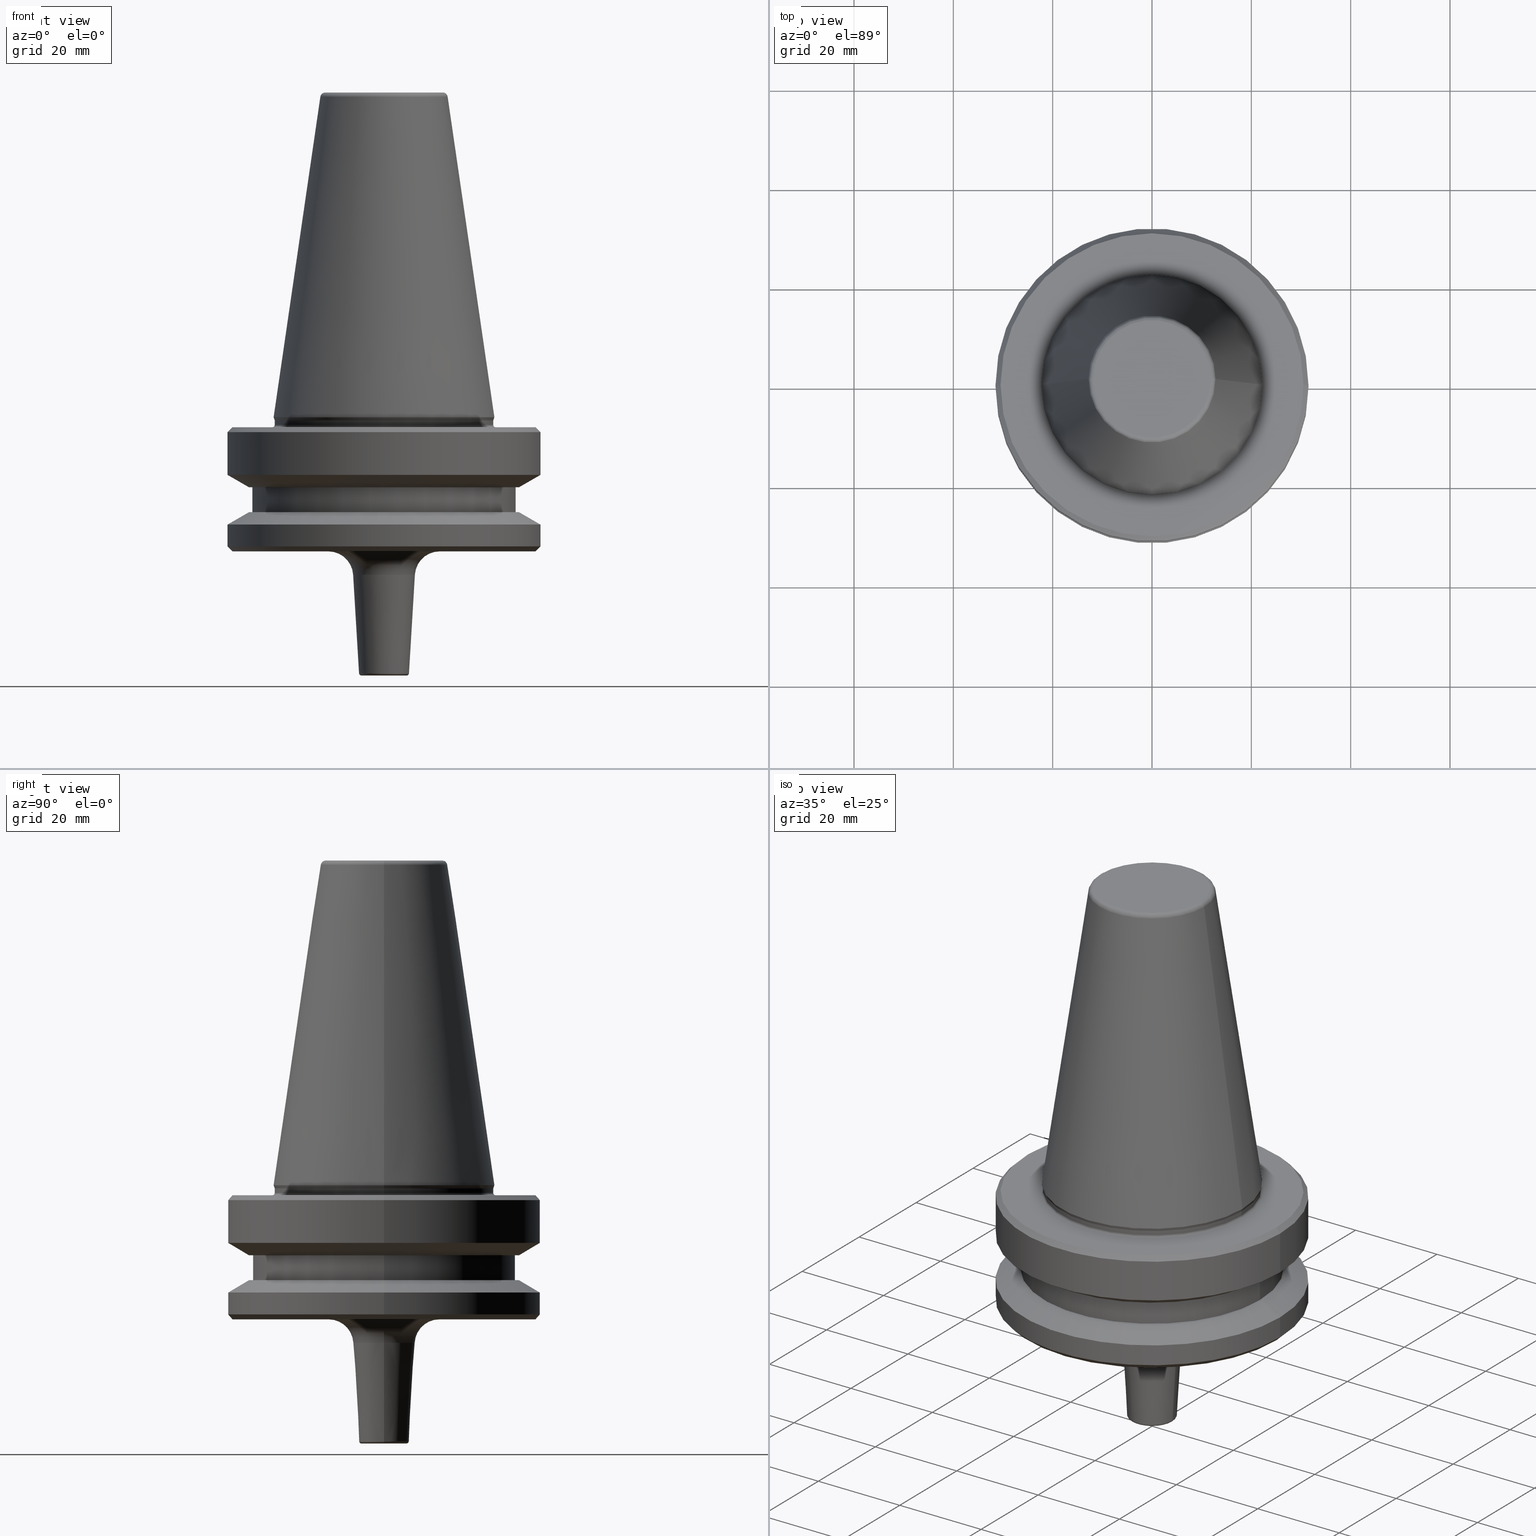
[diagram: canonical four-view strip — front | top / right | iso, engineering-drawing reading convention]
A machine part, canonical four-view strip (front | top / right | iso — engineering-drawing reading convention). The complete STEP part file that produces these views, byte-faithful:
ISO-10303-21;
HEADER;
FILE_DESCRIPTION (( 'STEP AP203' ),
    '1' );
FILE_NAME ('BT40 MCA06 025 AD+B-2.5G 25000 SL .STEP',
    '2019-05-24T09:30:52',
    ( '' ),
    ( '' ),
    'SwSTEP 2.0',
    'SolidWorks 2014',
    '' );
FILE_SCHEMA (( 'CONFIG_CONTROL_DESIGN' ));
ENDSEC;

DATA;
#1 = CIRCLE ( 'NONE', #195, 26.50000000000019200 ) ;
#2 = ORIENTED_EDGE ( 'NONE', *, *, #343, .T. ) ;
#3 = DIRECTION ( 'NONE',  ( -0.0000000000000000000, -0.0000000000000000000, 1.000000000000000000 ) ) ;
#4 = EDGE_LOOP ( 'NONE', ( #591, #598, #459, #958 ) ) ;
#5 = ORIENTED_EDGE ( 'NONE', *, *, #145, .F. ) ;
#6 =( GEOMETRIC_REPRESENTATION_CONTEXT ( 3 ) GLOBAL_UNCERTAINTY_ASSIGNED_CONTEXT ( ( #729 ) ) GLOBAL_UNIT_ASSIGNED_CONTEXT ( ( #460, #1021, #545 ) ) REPRESENTATION_CONTEXT ( 'NONE', 'WORKASPACE' ) );
#7 = DIRECTION ( 'NONE',  ( -0.0000000000000000000, -0.0000000000000000000, 1.000000000000000000 ) ) ;
#8 = EDGE_LOOP ( 'NONE', ( #480, #700, #1031, #535 ) ) ;
#9 = DIRECTION ( 'NONE',  ( -0.0000000000000000000, -0.0000000000000000000, 1.000000000000000000 ) ) ;
#10 = DIRECTION ( 'NONE',  ( 1.000000000000000000, 0.0000000000000000000, 0.0000000000000000000 ) ) ;
#11 = EDGE_CURVE ( 'NONE', #830, #121, #483, .T. ) ;
#12 = DIRECTION ( 'NONE',  ( -1.000000000000000000, 1.224646799147353000E-016, 0.0000000000000000000 ) ) ;
#13 = DIRECTION ( 'NONE',  ( -0.0000000000000000000, -0.0000000000000000000, 1.000000000000000000 ) ) ;
#14 = ADVANCED_FACE ( 'NONE', ( #853 ), #975, .T. ) ;
#15 = CARTESIAN_POINT ( 'NONE',  ( 0.0000000000000000000, 0.0000000000000000000, -4.440892098500626200E-013 ) ) ;
#16 = DIRECTION ( 'NONE',  ( -0.0000000000000000000, -0.0000000000000000000, 1.000000000000000000 ) ) ;
#17 = DIRECTION ( 'NONE',  ( 1.000000000000000000, 0.0000000000000000000, 0.0000000000000000000 ) ) ;
#18 = FACE_OUTER_BOUND ( 'NONE', #877, .T. ) ;
#19 = DIRECTION ( 'NONE',  ( -0.0000000000000000000, -0.0000000000000000000, 1.000000000000000000 ) ) ;
#20 = DIRECTION ( 'NONE',  ( -1.000000000000000000, 0.0000000000000000000, 0.0000000000000000000 ) ) ;
#21 = ORIENTED_EDGE ( 'NONE', *, *, #381, .T. ) ;
#22 = CARTESIAN_POINT ( 'NONE',  ( 0.0000000000000000000, 0.0000000000000000000, -76.99985799368391800 ) ) ;
#23 = CIRCLE ( 'NONE', #979, 22.00000000000002100 ) ;
#24 = CARTESIAN_POINT ( 'NONE',  ( 0.0000000000000000000, 0.0000000000000000000, -79.50000000000012800 ) ) ;
#25 = ADVANCED_FACE ( 'NONE', ( #47 ), #271, .F. ) ;
#26 = CARTESIAN_POINT ( 'NONE',  ( 0.0000000000000000000, 0.0000000000000000000, -97.40000000000803500 ) ) ;
#27 = LINE ( 'NONE', #977, #1050 ) ;
#28 = AXIS2_PLACEMENT_3D ( 'NONE', #504, #7, #601 ) ;
#29 = DIRECTION ( 'NONE',  ( -0.0000000000000000000, -0.0000000000000000000, 1.000000000000000000 ) ) ;
#30 = DIRECTION ( 'NONE',  ( 0.0000000000000000000, -1.000000000000000000, 0.0000000000000000000 ) ) ;
#31 = CYLINDRICAL_SURFACE ( 'NONE', #774, 22.00000000000002100 ) ;
#32 = ORIENTED_EDGE ( 'NONE', *, *, #167, .T. ) ;
#33 = AXIS2_PLACEMENT_3D ( 'NONE', #22, #614, #105 ) ;
#34 = ORIENTED_EDGE ( 'NONE', *, *, #122, .F. ) ;
#35 = DIRECTION ( 'NONE',  ( -0.8660254037844332700, 0.0000000000000000000, -0.5000000000000093300 ) ) ;
#36 = DIRECTION ( 'NONE',  ( 1.000000000000000000, 0.0000000000000000000, 0.0000000000000000000 ) ) ;
#37 = EDGE_CURVE ( 'NONE', #79, #450, #677, .T. ) ;
#38 = CARTESIAN_POINT ( 'NONE',  ( 0.0000000000000000000, 0.0000000000000000000, -92.40000000000804900 ) ) ;
#39 = EDGE_LOOP ( 'NONE', ( #308, #1011, #600, #34 ) ) ;
#40 = ORIENTED_EDGE ( 'NONE', *, *, #166, .F. ) ;
#41 = ORIENTED_EDGE ( 'NONE', *, *, #916, .F. ) ;
#42 = CARTESIAN_POINT ( 'NONE',  ( 31.50000000000008500, 0.0000000000000000000, -91.40000000000037500 ) ) ;
#43 = DIRECTION ( 'NONE',  ( -0.8660254037844383700, 1.060575238724906500E-016, 0.5000000000000003300 ) ) ;
#44 = EDGE_CURVE ( 'NONE', #79, #484, #556, .T. ) ;
#45 = DATE_TIME_ROLE ( 'creation_date' ) ;
#46 = CARTESIAN_POINT ( 'NONE',  ( 0.0000000000000000000, 0.0000000000000000000, -116.9299461453722800 ) ) ;
#47 = FACE_OUTER_BOUND ( 'NONE', #4, .T. ) ;
#48 = FACE_OUTER_BOUND ( 'NONE', #884, .T. ) ;
#49 = EDGE_LOOP ( 'NONE', ( #327, #334, #539, #778 ) ) ;
#50 = VECTOR ( 'NONE', #548, 1000.000000000000000 ) ;
#51 = AXIS2_PLACEMENT_3D ( 'NONE', #270, #836, #362 ) ;
#52 = AXIS2_PLACEMENT_3D ( 'NONE', #641, #143, #715 ) ;
#53 = CARTESIAN_POINT ( 'NONE',  ( -6.217967687218386900, 1.067093514758627600E-015, -97.10053854636829800 ) ) ;
#54 = FACE_OUTER_BOUND ( 'NONE', #780, .T. ) ;
#55 = EDGE_CURVE ( 'NONE', #262, #318, #142, .T. ) ;
#56 = VERTEX_POINT ( 'NONE', #344 ) ;
#57 = DIRECTION ( 'NONE',  ( 1.000000000000000000, 0.0000000000000000000, 0.0000000000000000000 ) ) ;
#58 = FACE_OUTER_BOUND ( 'NONE', #1016, .T. ) ;
#59 = DIRECTION ( 'NONE',  ( 1.000000000000000000, 0.0000000000000000000, 0.0000000000000000000 ) ) ;
#60 = CC_DESIGN_DATE_AND_TIME_ASSIGNMENT ( #725, #861, ( #499 ) ) ;
#61 = CARTESIAN_POINT ( 'NONE',  ( 0.0000000000000000000, 0.0000000000000000000, -66.90000000000040400 ) ) ;
#62 = ORIENTED_EDGE ( 'NONE', *, *, #800, .T. ) ;
#63 = DIRECTION ( 'NONE',  ( -0.0000000000000000000, -0.0000000000000000000, 1.000000000000000000 ) ) ;
#64 = ORIENTED_EDGE ( 'NONE', *, *, #184, .F. ) ;
#65 = COORDINATED_UNIVERSAL_TIME_OFFSET ( 5, 30, .AHEAD. ) ;
#66 = ORIENTED_EDGE ( 'NONE', *, *, #414, .T. ) ;
#67 = ADVANCED_FACE ( 'NONE', ( #114 ), #773, .F. ) ;
#68 = EDGE_CURVE ( 'NONE', #484, #647, #948, .T. ) ;
#69 = EDGE_LOOP ( 'NONE', ( #424, #731, #235, #244 ) ) ;
#70 = CONICAL_SURFACE ( 'NONE', #568, 22.22499999999993700, 0.3490658503994643600 ) ;
#71 = CARTESIAN_POINT ( 'NONE',  ( 0.0000000000000000000, 0.0000000000000000000, -0.8556918111122247000 ) ) ;
#72 = DIRECTION ( 'NONE',  ( 1.000000000000000000, 0.0000000000000000000, 0.0000000000000000000 ) ) ;
#73 = LINE ( 'NONE', #462, #50 ) ;
#74 = APPROVAL ( #458, 'UNSPECIFIED' ) ;
#75 = DIRECTION ( 'NONE',  ( 1.000000000000000000, 0.0000000000000000000, 0.0000000000000000000 ) ) ;
#76 = EDGE_CURVE ( 'NONE', #647, #450, #342, .T. ) ;
#77 = CARTESIAN_POINT ( 'NONE',  ( 0.0000000000000000000, 0.0000000000000000000, -91.40000000000037500 ) ) ;
#78 = VERTEX_POINT ( 'NONE', #85 ) ;
#79 = VERTEX_POINT ( 'NONE', #643 ) ;
#80 = CIRCLE ( 'NONE', #666, 0.4999999999996951300 ) ;
#81 = AXIS2_PLACEMENT_3D ( 'NONE', #231, #951, #179 ) ;
#82 = EDGE_LOOP ( 'NONE', ( #524, #873, #894, #553 ) ) ;
#83 = AXIS2_PLACEMENT_3D ( 'NONE', #1003, #29, #620 ) ;
#84 = CIRCLE ( 'NONE', #251, 31.50000000000008500 ) ;
#85 = CARTESIAN_POINT ( 'NONE',  ( -26.50000000000019200, 3.245314017740509400E-015, -79.50000000000012800 ) ) ;
#86 = ORIENTED_EDGE ( 'NONE', *, *, #427, .F. ) ;
#87 = ORIENTED_EDGE ( 'NONE', *, *, #670, .F. ) ;
#88 = LOCAL_TIME ( 15, 0, 52.00000000000000000, #319 ) ;
#89 = CONICAL_SURFACE ( 'NONE', #844, 31.50000000000008500, 1.047197551196597400 ) ;
#90 = VERTEX_POINT ( 'NONE', #812 ) ;
#91 = DIRECTION ( 'NONE',  ( 0.0000000000000000000, 0.0000000000000000000, -1.000000000000000000 ) ) ;
#92 = ORIENTED_EDGE ( 'NONE', *, *, #920, .T. ) ;
#93 = ORIENTED_EDGE ( 'NONE', *, *, #454, .T. ) ;
#94 = CARTESIAN_POINT ( 'NONE',  ( 0.0000000000000000000, 0.0000000000000000000, -67.40000000000034700 ) ) ;
#95 = DIRECTION ( 'NONE',  ( 0.0000000000000000000, 0.0000000000000000000, -1.000000000000000000 ) ) ;
#96 = ORIENTED_EDGE ( 'NONE', *, *, #445, .F. ) ;
#97 = EDGE_CURVE ( 'NONE', #293, #852, #746, .T. ) ;
#98 = CONICAL_SURFACE ( 'NONE', #807, 30.49999999999997200, 0.7853981633974482800 ) ;
#99 = CARTESIAN_POINT ( 'NONE',  ( -31.50000000000008500, 3.857637417314172900E-015, -91.40000000000037500 ) ) ;
#100 = DIRECTION ( 'NONE',  ( -1.000000000000000000, 0.0000000000000000000, -0.0000000000000000000 ) ) ;
#101 = CARTESIAN_POINT ( 'NONE',  ( -26.50000000000019200, 3.245314017740509400E-015, 6.357346922996331500 ) ) ;
#102 = CARTESIAN_POINT ( 'NONE',  ( 0.0000000000000000000, 0.0000000000000000000, 6.357346922996331500 ) ) ;
#103 = CARTESIAN_POINT ( 'NONE',  ( 27.16962701892322600, 0.0000000000000000000, -79.50000000000012800 ) ) ;
#104 = AXIS2_PLACEMENT_3D ( 'NONE', #46, #631, #131 ) ;
#105 = DIRECTION ( 'NONE',  ( 1.000000000000000000, 0.0000000000000000000, 0.0000000000000000000 ) ) ;
#106 = DIRECTION ( 'NONE',  ( 1.000000000000000000, 0.0000000000000000000, 0.0000000000000000000 ) ) ;
#107 = ORIENTED_EDGE ( 'NONE', *, *, #841, .T. ) ;
#108 = EDGE_CURVE ( 'NONE', #465, #175, #84, .T. ) ;
#109 = CIRCLE ( 'NONE', #116, 31.50000000000008500 ) ;
#110 = ORIENTED_EDGE ( 'NONE', *, *, #442, .F. ) ;
#111 = DIRECTION ( 'NONE',  ( -0.0000000000000000000, -0.0000000000000000000, 1.000000000000000000 ) ) ;
#112 = AXIS2_PLACEMENT_3D ( 'NONE', #159, #332, #329 ) ;
#113 = PERSON_AND_ORGANIZATION ( #517, #1047 ) ;
#114 = FACE_OUTER_BOUND ( 'NONE', #668, .T. ) ;
#115 = CARTESIAN_POINT ( 'NONE',  ( 0.0000000000000000000, 0.0000000000000000000, 6.357346922996331500 ) ) ;
#116 = AXIS2_PLACEMENT_3D ( 'NONE', #182, #760, #268 ) ;
#117 = APPROVAL_DATE_TIME ( #346, #245 ) ;
#118 = CIRCLE ( 'NONE', #694, 0.9999999999999696900 ) ;
#119 = ORIENTED_EDGE ( 'NONE', *, *, #222, .F. ) ;
#120 = DIRECTION ( 'NONE',  ( -1.000000000000000000, 0.0000000000000000000, 0.0000000000000000000 ) ) ;
#121 = VERTEX_POINT ( 'NONE', #716 ) ;
#122 = EDGE_CURVE ( 'NONE', #830, #1013, #717, .T. ) ;
#123 = ADVANCED_FACE ( 'NONE', ( #315 ), #892, .T. ) ;
#124 = EDGE_LOOP ( 'NONE', ( #339, #321, #197, #623 ) ) ;
#125 = ORIENTED_EDGE ( 'NONE', *, *, #584, .F. ) ;
#126 = AXIS2_PLACEMENT_3D ( 'NONE', #412, #964, #482 ) ;
#127 = DIRECTION ( 'NONE',  ( -0.0000000000000000000, -0.0000000000000000000, 1.000000000000000000 ) ) ;
#128 = ADVANCED_FACE ( 'NONE', ( #526 ), #284, .F. ) ;
#129 = CARTESIAN_POINT ( 'NONE',  ( -22.22499999999993700, 2.721777511104985000E-015, -65.40000000000057400 ) ) ;
#130 = APPROVAL_ROLE ( '' ) ;
#131 = DIRECTION ( 'NONE',  ( 1.000000000000000000, 0.0000000000000000000, 0.0000000000000000000 ) ) ;
#132 = LINE ( 'NONE', #99, #736 ) ;
#133 = CARTESIAN_POINT ( 'NONE',  ( -22.00000000000002100, 2.694222958124179600E-015, 6.357346922996331500 ) ) ;
#134 = EDGE_LOOP ( 'NONE', ( #86, #479, #325, #5 ) ) ;
#135 = SHAPE_DEFINITION_REPRESENTATION ( #897, #405 ) ;
#136 = CARTESIAN_POINT ( 'NONE',  ( 27.16962701892256100, 3.592478546794633900E-015, -84.50000000000068200 ) ) ;
#137 = CONICAL_SURFACE ( 'NONE', #950, 6.217967687218386900, 0.05992815512120790200 ) ;
#138 = ORIENTED_EDGE ( 'NONE', *, *, #547, .T. ) ;
#139 = CARTESIAN_POINT ( 'NONE',  ( -30.49999999999997200, 0.0000000000000000000, -67.40000000000034700 ) ) ;
#140 = ADVANCED_FACE ( 'NONE', ( #58 ), #31, .T. ) ;
#141 = PERSON_AND_ORGANIZATION ( #517, #1047 ) ;
#142 = CIRCLE ( 'NONE', #257, 31.50000000000008500 ) ;
#143 = DIRECTION ( 'NONE',  ( -0.0000000000000000000, -0.0000000000000000000, 1.000000000000000000 ) ) ;
#144 = AXIS2_PLACEMENT_3D ( 'NONE', #737, #243, #819 ) ;
#145 = EDGE_CURVE ( 'NONE', #352, #981, #254, .T. ) ;
#146 = DIRECTION ( 'NONE',  ( 1.000000000000000000, 0.0000000000000000000, 0.0000000000000000000 ) ) ;
#147 = CONICAL_SURFACE ( 'NONE', #360, 31.50000000000008500, 1.047197551196587000 ) ;
#148 = DIRECTION ( 'NONE',  ( -0.0000000000000000000, -0.0000000000000000000, 1.000000000000000000 ) ) ;
#149 = EDGE_LOOP ( 'NONE', ( #743, #658, #451, #625 ) ) ;
#150 = ORIENTED_EDGE ( 'NONE', *, *, #372, .F. ) ;
#151 = DIRECTION ( 'NONE',  ( 1.000000000000000000, 0.0000000000000000000, 0.0000000000000000000 ) ) ;
#152 = AXIS2_PLACEMENT_3D ( 'NONE', #938, #635, #209 ) ;
#153 = EDGE_CURVE ( 'NONE', #833, #382, #918, .T. ) ;
#154 = ORIENTED_EDGE ( 'NONE', *, *, #343, .F. ) ;
#155 = ORIENTED_EDGE ( 'NONE', *, *, #800, .F. ) ;
#156 = ORIENTED_EDGE ( 'NONE', *, *, #703, .F. ) ;
#157 = TOROIDAL_SURFACE ( 'NONE', #461, 11.20899191454727800, 4.999999999999995600 ) ;
#158 = DIRECTION ( 'NONE',  ( 1.000000000000000000, 0.0000000000000000000, 0.0000000000000000000 ) ) ;
#159 = CARTESIAN_POINT ( 'NONE',  ( 11.82266927716813000, 0.0000000000000000000, -1.000000000000334000 ) ) ;
#160 = PRODUCT_DEFINITION ( 'UNKNOWN', '', #194, #174 ) ;
#161 = DIRECTION ( 'NONE',  ( 1.000000000000000000, 0.0000000000000000000, 0.0000000000000000000 ) ) ;
#162 = CIRCLE ( 'NONE', #632, 22.00000000000002100 ) ;
#163 = EDGE_CURVE ( 'NONE', #287, #318, #473, .T. ) ;
#164 = COORDINATED_UNIVERSAL_TIME_OFFSET ( 5, 30, .AHEAD. ) ;
#165 = AXIS2_PLACEMENT_3D ( 'NONE', #221, #645, #146 ) ;
#166 = EDGE_CURVE ( 'NONE', #962, #895, #872, .T. ) ;
#167 = EDGE_CURVE ( 'NONE', #769, #324, #695, .T. ) ;
#168 = CARTESIAN_POINT ( 'NONE',  ( 0.0000000000000000000, 0.0000000000000000000, -116.9299461453722800 ) ) ;
#169 = CIRCLE ( 'NONE', #937, 11.20899191454727800 ) ;
#170 = ORIENTED_EDGE ( 'NONE', *, *, #570, .F. ) ;
#171 = CARTESIAN_POINT ( 'NONE',  ( 22.22499999999993700, 0.0000000000000000000, -65.40000000000057400 ) ) ;
#172 = ORIENTED_EDGE ( 'NONE', *, *, #258, .T. ) ;
#173 = AXIS2_PLACEMENT_3D ( 'NONE', #783, #1012, #294 ) ;
#174 = DESIGN_CONTEXT ( 'detailed design', #385, 'design' ) ;
#175 = VERTEX_POINT ( 'NONE', #879 ) ;
#176 = DIRECTION ( 'NONE',  ( 1.000000000000000000, 0.0000000000000000000, 0.0000000000000000000 ) ) ;
#177 = TOROIDAL_SURFACE ( 'NONE', #680, 4.529100808545555500, 0.4999999999996908000 ) ;
#178 = EDGE_LOOP ( 'NONE', ( #854, #621 ) ) ;
#179 = DIRECTION ( 'NONE',  ( 1.000000000000000000, 0.0000000000000000000, 0.0000000000000000000 ) ) ;
#180 = CC_DESIGN_PERSON_AND_ORGANIZATION_ASSIGNMENT ( #824, #858, ( #1000 ) ) ;
#181 = DIRECTION ( 'NONE',  ( 0.8660254037844383700, 0.0000000000000000000, 0.5000000000000003300 ) ) ;
#182 = CARTESIAN_POINT ( 'NONE',  ( 0.0000000000000000000, 0.0000000000000000000, -87.00014200631733300 ) ) ;
#183 = AXIS2_PLACEMENT_3D ( 'NONE', #721, #225, #810 ) ;
#184 = EDGE_CURVE ( 'NONE', #78, #587, #1, .T. ) ;
#185 = DIRECTION ( 'NONE',  ( -0.0000000000000000000, -0.0000000000000000000, 1.000000000000000000 ) ) ;
#186 = TOROIDAL_SURFACE ( 'NONE', #165, 11.20899191454727800, 4.999999999999995600 ) ;
#187 = DIRECTION ( 'NONE',  ( 1.000000000000000000, 0.0000000000000000000, 0.0000000000000000000 ) ) ;
#188 = DIRECTION ( 'NONE',  ( -0.0000000000000000000, -0.0000000000000000000, 1.000000000000000000 ) ) ;
#189 = DIRECTION ( 'NONE',  ( 1.000000000000000000, 0.0000000000000000000, 0.0000000000000000000 ) ) ;
#190 = EDGE_CURVE ( 'NONE', #536, #806, #229, .T. ) ;
#191 = DIRECTION ( 'NONE',  ( 1.000000000000000000, 0.0000000000000000000, 0.0000000000000000000 ) ) ;
#192 = ADVANCED_FACE ( 'NONE', ( #449 ), #624, .T. ) ;
#193 = DIRECTION ( 'NONE',  ( -0.0000000000000000000, -0.0000000000000000000, 1.000000000000000000 ) ) ;
#194 = PRODUCT_DEFINITION_FORMATION_WITH_SPECIFIED_SOURCE ( 'ANY', '', #1000, .NOT_KNOWN. ) ;
#195 = AXIS2_PLACEMENT_3D ( 'NONE', #966, #487, #1045 ) ;
#196 = VECTOR ( 'NONE', #35, 1000.000000000000000 ) ;
#197 = ORIENTED_EDGE ( 'NONE', *, *, #859, .T. ) ;
#198 = DIRECTION ( 'NONE',  ( 1.224646799147353200E-016, 1.000000000000000000, 0.0000000000000000000 ) ) ;
#199 = VERTEX_POINT ( 'NONE', #260 ) ;
#200 = ORIENTED_EDGE ( 'NONE', *, *, #222, .T. ) ;
#201 = EDGE_CURVE ( 'NONE', #503, #1013, #832, .T. ) ;
#202 = FACE_BOUND ( 'NONE', #740, .T. ) ;
#203 = ORIENTED_EDGE ( 'NONE', *, *, #1038, .F. ) ;
#204 = DIRECTION ( 'NONE',  ( 0.05989229072794673800, 0.0000000000000000000, 0.9982048454657787000 ) ) ;
#205 = CC_DESIGN_APPROVAL ( #245, ( #194 ) ) ;
#206 = CARTESIAN_POINT ( 'NONE',  ( 0.0000000000000000000, 0.0000000000000000000, -91.40000000000037500 ) ) ;
#207 = CARTESIAN_POINT ( 'NONE',  ( 0.0000000000000000000, 0.0000000000000000000, -84.50000000000068200 ) ) ;
#208 = PERSON_AND_ORGANIZATION_ROLE ( 'design_supplier' ) ;
#209 = DIRECTION ( 'NONE',  ( 1.000000000000000000, 0.0000000000000000000, 0.0000000000000000000 ) ) ;
#210 = CIRCLE ( 'NONE', #1042, 27.16962701892256100 ) ;
#211 = DIRECTION ( 'NONE',  ( 0.0000000000000000000, 0.0000000000000000000, 1.000000000000000000 ) ) ;
#212 = CARTESIAN_POINT ( 'NONE',  ( 0.0000000000000000000, 0.0000000000000000000, -0.8556918111122247000 ) ) ;
#213 = AXIS2_PLACEMENT_3D ( 'NONE', #991, #16, #904 ) ;
#214 = EDGE_CURVE ( 'NONE', #785, #665, #649, .T. ) ;
#215 = CARTESIAN_POINT ( 'NONE',  ( 0.0000000000000000000, 0.0000000000000000000, -65.95190515433003500 ) ) ;
#216 = LINE ( 'NONE', #865, #638 ) ;
#217 = EDGE_CURVE ( 'NONE', #287, #90, #1034, .T. ) ;
#218 = ADVANCED_FACE ( 'NONE', ( #425 ), #1014, .T. ) ;
#219 = AXIS2_PLACEMENT_3D ( 'NONE', #834, #835, #359 ) ;
#220 = CIRCLE ( 'NONE', #748, 0.4999999999999449300 ) ;
#221 = CARTESIAN_POINT ( 'NONE',  ( 0.0000000000000000000, 0.0000000000000000000, -97.40000000000803500 ) ) ;
#222 = EDGE_CURVE ( 'NONE', #90, #262, #851, .T. ) ;
#223 = ADVANCED_FACE ( 'NONE', ( #707 ), #177, .T. ) ;
#224 = EDGE_CURVE ( 'NONE', #318, #262, #603, .T. ) ;
#225 = DIRECTION ( 'NONE',  ( -0.0000000000000000000, -0.0000000000000000000, 1.000000000000000000 ) ) ;
#226 = DIRECTION ( 'NONE',  ( -0.0000000000000000000, -0.0000000000000000000, 1.000000000000000000 ) ) ;
#227 = DIRECTION ( 'NONE',  ( -0.0000000000000000000, -0.0000000000000000000, 1.000000000000000000 ) ) ;
#228 = CC_DESIGN_SECURITY_CLASSIFICATION ( #499, ( #194 ) ) ;
#229 = CIRCLE ( 'NONE', #444, 27.16962701892322600 ) ;
#230 = ORIENTED_EDGE ( 'NONE', *, *, #328, .T. ) ;
#231 = CARTESIAN_POINT ( 'NONE',  ( 0.0000000000000000000, 0.0000000000000000000, -116.9000000000083300 ) ) ;
#232 = ORIENTED_EDGE ( 'NONE', *, *, #163, .T. ) ;
#233 = AXIS2_PLACEMENT_3D ( 'NONE', #628, #127, #705 ) ;
#234 = ORIENTED_EDGE ( 'NONE', *, *, #400, .T. ) ;
#235 = ORIENTED_EDGE ( 'NONE', *, *, #770, .T. ) ;
#236 = ADVANCED_FACE ( 'NONE', ( #386 ), #157, .F. ) ;
#237 = AXIS2_PLACEMENT_3D ( 'NONE', #933, #211, #187 ) ;
#238 = DIRECTION ( 'NONE',  ( -0.0000000000000000000, -0.0000000000000000000, 1.000000000000000000 ) ) ;
#239 = EDGE_CURVE ( 'NONE', #806, #90, #573, .T. ) ;
#240 = MANIFOLD_SOLID_BREP ( 'Revolve1', #749 ) ;
#241 = DIRECTION ( 'NONE',  ( -0.0000000000000000000, -0.0000000000000000000, 1.000000000000000000 ) ) ;
#242 = VECTOR ( 'NONE', #840, 1000.000000000000000 ) ;
#243 = DIRECTION ( 'NONE',  ( -0.0000000000000000000, -0.0000000000000000000, 1.000000000000000000 ) ) ;
#244 = ORIENTED_EDGE ( 'NONE', *, *, #454, .F. ) ;
#245 = APPROVAL ( #630, 'UNSPECIFIED' ) ;
#246 = VECTOR ( 'NONE', #392, 1000.000000000000000 ) ;
#247 = CARTESIAN_POINT ( 'NONE',  ( 0.0000000000000000000, 0.0000000000000000000, -4.440892098500626200E-013 ) ) ;
#248 = CIRCLE ( 'NONE', #973, 22.22499999999993700 ) ;
#249 = PLANE ( 'NONE',  #394 ) ;
#250 = CIRCLE ( 'NONE', #574, 11.82266927716813000 ) ;
#251 = AXIS2_PLACEMENT_3D ( 'NONE', #1030, #560, #59 ) ;
#252 = ADVANCED_FACE ( 'NONE', ( #786 ), #98, .T. ) ;
#253 = DIRECTION ( 'NONE',  ( 1.000000000000000000, 0.0000000000000000000, 0.0000000000000000000 ) ) ;
#254 = CIRCLE ( 'NONE', #576, 31.50000000000008500 ) ;
#255 = ORIENTED_EDGE ( 'NONE', *, *, #337, .F. ) ;
#256 = ORIENTED_EDGE ( 'NONE', *, *, #153, .T. ) ;
#257 = AXIS2_PLACEMENT_3D ( 'NONE', #474, #1032, #567 ) ;
#258 = EDGE_CURVE ( 'NONE', #895, #962, #544, .T. ) ;
#259 = ORIENTED_EDGE ( 'NONE', *, *, #825, .F. ) ;
#260 = CARTESIAN_POINT ( 'NONE',  ( 4.529100808545555500, 0.0000000000000000000, -117.4000000000080100 ) ) ;
#261 = APPROVAL_DATE_TIME ( #478, #688 ) ;
#262 = VERTEX_POINT ( 'NONE', #267 ) ;
#263 = CARTESIAN_POINT ( 'NONE',  ( 22.00000000000002100, 0.0000000000000000000, -66.90000000000040400 ) ) ;
#264 = VERTEX_POINT ( 'NONE', #358 ) ;
#265 = PLANE ( 'NONE',  #1015 ) ;
#266 = CARTESIAN_POINT ( 'NONE',  ( 30.49999999999241900, 0.0000000000000000000, -92.40000000000803500 ) ) ;
#267 = CARTESIAN_POINT ( 'NONE',  ( 31.50000000000008500, 0.0000000000000000000, -68.40000000000046000 ) ) ;
#268 = DIRECTION ( 'NONE',  ( 1.000000000000000000, 0.0000000000000000000, 0.0000000000000000000 ) ) ;
#269 = EDGE_CURVE ( 'NONE', #121, #944, #330, .T. ) ;
#270 = CARTESIAN_POINT ( 'NONE',  ( 0.0000000000000000000, 0.0000000000000000000, -67.40000000000034700 ) ) ;
#271 = TOROIDAL_SURFACE ( 'NONE', #839, 22.40000000000019800, 0.4000000000001546800 ) ;
#272 = VECTOR ( 'NONE', #43, 1000.000000000000100 ) ;
#273 = CARTESIAN_POINT ( 'NONE',  ( 0.0000000000000000000, 0.0000000000000000000, -65.40000000000057400 ) ) ;
#274 = CARTESIAN_POINT ( 'NONE',  ( 0.0000000000000000000, 0.0000000000000000000, -0.8556918111122247000 ) ) ;
#275 = ORIENTED_EDGE ( 'NONE', *, *, #361, .F. ) ;
#276 = CIRCLE ( 'NONE', #893, 11.82266927716813000 ) ;
#277 = AXIS2_PLACEMENT_3D ( 'NONE', #303, #862, #391 ) ;
#278 = CARTESIAN_POINT ( 'NONE',  ( 0.0000000000000000000, 0.0000000000000000000, -116.9000000000083300 ) ) ;
#279 = EDGE_CURVE ( 'NONE', #932, #455, #761, .T. ) ;
#280 = VECTOR ( 'NONE', #436, 1000.000000000000000 ) ;
#281 = ORIENTED_EDGE ( 'NONE', *, *, #37, .T. ) ;
#282 = AXIS2_PLACEMENT_3D ( 'NONE', #956, #63, #650 ) ;
#283 = EDGE_CURVE ( 'NONE', #653, #199, #965, .T. ) ;
#284 = TOROIDAL_SURFACE ( 'NONE', #83, 22.49999999999996400, 0.4999999999999449300 ) ;
#285 = DIRECTION ( 'NONE',  ( 1.000000000000000000, 0.0000000000000000000, 0.0000000000000000000 ) ) ;
#286 = CARTESIAN_POINT ( 'NONE',  ( -31.50000000000008500, 0.0000000000000000000, -87.00014200631733300 ) ) ;
#287 = VERTEX_POINT ( 'NONE', #434 ) ;
#288 = ORIENTED_EDGE ( 'NONE', *, *, #11, .T. ) ;
#289 = APPROVAL_PERSON_ORGANIZATION ( #500, #688, #935 ) ;
#290 = DIRECTION ( 'NONE',  ( -0.0000000000000000000, -0.0000000000000000000, 1.000000000000000000 ) ) ;
#291 = AXIS2_PLACEMENT_3D ( 'NONE', #212, #794, #306 ) ;
#292 = CONICAL_SURFACE ( 'NONE', #398, 31.50000000000008500, 1.047197551196597400 ) ;
#293 = VERTEX_POINT ( 'NONE', #676 ) ;
#294 = DIRECTION ( 'NONE',  ( 1.000000000000000000, 0.0000000000000000000, 0.0000000000000000000 ) ) ;
#295 = DIRECTION ( 'NONE',  ( 0.0000000000000000000, 0.0000000000000000000, -1.000000000000000000 ) ) ;
#296 = ORIENTED_EDGE ( 'NONE', *, *, #279, .T. ) ;
#297 = DIRECTION ( 'NONE',  ( 1.000000000000000000, 0.0000000000000000000, 0.0000000000000000000 ) ) ;
#298 = ORIENTED_EDGE ( 'NONE', *, *, #167, .F. ) ;
#299 = FACE_OUTER_BOUND ( 'NONE', #497, .T. ) ;
#300 = EDGE_CURVE ( 'NONE', #293, #465, #132, .T. ) ;
#301 = DIRECTION ( 'NONE',  ( 1.000000000000000000, 0.0000000000000000000, 0.0000000000000000000 ) ) ;
#302 = PERSON_AND_ORGANIZATION_ROLE ( 'classification_officer' ) ;
#303 = CARTESIAN_POINT ( 'NONE',  ( 22.40000000000019800, 0.0000000000000000000, -66.08871321165987900 ) ) ;
#304 = ADVANCED_FACE ( 'NONE', ( #989 ), #907, .T. ) ;
#305 = CIRCLE ( 'NONE', #104, 5.028203231278147300 ) ;
#306 = DIRECTION ( 'NONE',  ( 1.000000000000000000, 0.0000000000000000000, 0.0000000000000000000 ) ) ;
#307 = DIRECTION ( 'NONE',  ( 1.000000000000000000, 0.0000000000000000000, 0.0000000000000000000 ) ) ;
#308 = ORIENTED_EDGE ( 'NONE', *, *, #389, .T. ) ;
#309 = ORIENTED_EDGE ( 'NONE', *, *, #1049, .T. ) ;
#310 = FACE_OUTER_BOUND ( 'NONE', #967, .T. ) ;
#311 = ORIENTED_EDGE ( 'NONE', *, *, #825, .T. ) ;
#312 = AXIS2_PLACEMENT_3D ( 'NONE', #678, #430, #838 ) ;
#313 = CARTESIAN_POINT ( 'NONE',  ( 0.0000000000000000000, 0.0000000000000000000, -84.50000000000068200 ) ) ;
#314 = AXIS2_PLACEMENT_3D ( 'NONE', #827, #340, #890 ) ;
#315 = FACE_OUTER_BOUND ( 'NONE', #39, .T. ) ;
#316 = CARTESIAN_POINT ( 'NONE',  ( 22.00000000000002100, 0.0000000000000000000, 6.357346922996331500 ) ) ;
#317 = DIRECTION ( 'NONE',  ( 1.000000000000000000, 0.0000000000000000000, 0.0000000000000000000 ) ) ;
#318 = VERTEX_POINT ( 'NONE', #439 ) ;
#319 = COORDINATED_UNIVERSAL_TIME_OFFSET ( 5, 30, .AHEAD. ) ;
#320 = FACE_OUTER_BOUND ( 'NONE', #757, .T. ) ;
#321 = ORIENTED_EDGE ( 'NONE', *, *, #283, .T. ) ;
#322 = EDGE_LOOP ( 'NONE', ( #41, #795, #640, #891 ) ) ;
#323 = EDGE_CURVE ( 'NONE', #550, #814, #305, .T. ) ;
#324 = VERTEX_POINT ( 'NONE', #931 ) ;
#325 = ORIENTED_EDGE ( 'NONE', *, *, #1055, .T. ) ;
#326 = AXIS2_PLACEMENT_3D ( 'NONE', #990, #509, #12 ) ;
#327 = ORIENTED_EDGE ( 'NONE', *, *, #300, .F. ) ;
#328 = EDGE_CURVE ( 'NONE', #378, #1013, #512, .T. ) ;
#329 = DIRECTION ( 'NONE',  ( 0.0000000000000000000, 0.0000000000000000000, -1.000000000000000000 ) ) ;
#330 = CIRCLE ( 'NONE', #51, 22.49999999999996400 ) ;
#331 = DIRECTION ( 'NONE',  ( 1.224646799147353200E-016, 1.000000000000000000, 0.0000000000000000000 ) ) ;
#332 = DIRECTION ( 'NONE',  ( 0.0000000000000000000, -1.000000000000000000, 0.0000000000000000000 ) ) ;
#333 = CARTESIAN_POINT ( 'NONE',  ( 0.0000000000000000000, 0.0000000000000000000, -87.00014200631733300 ) ) ;
#334 = ORIENTED_EDGE ( 'NONE', *, *, #97, .T. ) ;
#335 = EDGE_CURVE ( 'NONE', #264, #932, #936, .T. ) ;
#336 = FACE_OUTER_BOUND ( 'NONE', #811, .T. ) ;
#337 = EDGE_CURVE ( 'NONE', #56, #932, #73, .T. ) ;
#338 = DIRECTION ( 'NONE',  ( 1.000000000000000000, 0.0000000000000000000, 0.0000000000000000000 ) ) ;
#339 = ORIENTED_EDGE ( 'NONE', *, *, #841, .F. ) ;
#340 = DIRECTION ( 'NONE',  ( -0.0000000000000000000, -0.0000000000000000000, 1.000000000000000000 ) ) ;
#341 = DATE_AND_TIME ( #555, #772 ) ;
#342 = CIRCLE ( 'NONE', #719, 6.217967687218386900 ) ;
#343 = EDGE_CURVE ( 'NONE', #264, #785, #710, .T. ) ;
#344 = CARTESIAN_POINT ( 'NONE',  ( -22.02412295168553100, 2.697177167680943700E-015, -65.95190515433003500 ) ) ;
#345 = CARTESIAN_POINT ( 'NONE',  ( 6.217967687218386900, 0.0000000000000000000, -97.10053854636829800 ) ) ;
#346 = DATE_AND_TIME ( #561, #525 ) ;
#347 = VECTOR ( 'NONE', #1037, 1000.000000000000000 ) ;
#348 = EDGE_LOOP ( 'NONE', ( #172, #901 ) ) ;
#349 = AXIS2_PLACEMENT_3D ( 'NONE', #207, #789, #301 ) ;
#350 = ORIENTED_EDGE ( 'NONE', *, *, #920, .F. ) ;
#351 = ORIENTED_EDGE ( 'NONE', *, *, #201, .F. ) ;
#352 = VERTEX_POINT ( 'NONE', #1023 ) ;
#353 = PLANE ( 'NONE',  #792 ) ;
#354 = EDGE_LOOP ( 'NONE', ( #110, #898, #288, #752 ) ) ;
#355 = CARTESIAN_POINT ( 'NONE',  ( 0.0000000000000000000, 6.647177730487059000E-014, -92.40000000000803500 ) ) ;
#356 = DIRECTION ( 'NONE',  ( -0.0000000000000000000, -0.0000000000000000000, 1.000000000000000000 ) ) ;
#357 = VECTOR ( 'NONE', #181, 1000.000000000000100 ) ;
#358 = CARTESIAN_POINT ( 'NONE',  ( -12.81220206925736900, 0.0000000000000000000, -0.8556918111122247000 ) ) ;
#359 = DIRECTION ( 'NONE',  ( 1.000000000000000000, 0.0000000000000000000, 0.0000000000000000000 ) ) ;
#360 = AXIS2_PLACEMENT_3D ( 'NONE', #380, #927, #120 ) ;
#361 = EDGE_CURVE ( 'NONE', #697, #503, #466, .T. ) ;
#362 = DIRECTION ( 'NONE',  ( 1.000000000000000000, 0.0000000000000000000, 0.0000000000000000000 ) ) ;
#363 = ADVANCED_FACE ( 'NONE', ( #684 ), #656, .T. ) ;
#364 = CARTESIAN_POINT ( 'NONE',  ( 22.00000000000002100, 0.0000000000000000000, -66.08871321165987900 ) ) ;
#365 = EDGE_LOOP ( 'NONE', ( #311, #21 ) ) ;
#366 = DIRECTION ( 'NONE',  ( -0.7071067811865487900, 8.659560562354948900E-017, 0.7071067811865463500 ) ) ;
#367 = LINE ( 'NONE', #1017, #551 ) ;
#368 = FACE_BOUND ( 'NONE', #178, .T. ) ;
#369 = EDGE_CURVE ( 'NONE', #56, #378, #864, .T. ) ;
#370 = APPROVAL_DATE_TIME ( #586, #74 ) ;
#371 = CC_DESIGN_PERSON_AND_ORGANIZATION_ASSIGNMENT ( #531, #302, ( #499 ) ) ;
#372 = EDGE_CURVE ( 'NONE', #382, #981, #885, .T. ) ;
#373 = DIRECTION ( 'NONE',  ( 1.000000000000000000, 0.0000000000000000000, 0.0000000000000000000 ) ) ;
#374 = CIRCLE ( 'NONE', #988, 12.81220206925736900 ) ;
#375 = CARTESIAN_POINT ( 'NONE',  ( 0.0000000000000000000, 0.0000000000000000000, -67.40000000000034700 ) ) ;
#376 = EDGE_LOOP ( 'NONE', ( #426, #154, #781, #296 ) ) ;
#377 = ORIENTED_EDGE ( 'NONE', *, *, #400, .F. ) ;
#378 = VERTEX_POINT ( 'NONE', #941 ) ;
#379 = AXIS2_PLACEMENT_3D ( 'NONE', #945, #469, #1026 ) ;
#380 = CARTESIAN_POINT ( 'NONE',  ( 0.0000000000000000000, 0.0000000000000000000, -87.00014200631733300 ) ) ;
#381 = EDGE_CURVE ( 'NONE', #784, #665, #276, .T. ) ;
#382 = VERTEX_POINT ( 'NONE', #136 ) ;
#383 = ORIENTED_EDGE ( 'NONE', *, *, #214, .T. ) ;
#384 = DIRECTION ( 'NONE',  ( 1.000000000000000000, 0.0000000000000000000, 0.0000000000000000000 ) ) ;
#385 = APPLICATION_CONTEXT ( 'configuration controlled 3d designs of mechanical parts and assemblies' ) ;
#386 = FACE_OUTER_BOUND ( 'NONE', #456, .T. ) ;
#387 = DIRECTION ( 'NONE',  ( -0.0000000000000000000, -0.0000000000000000000, 1.000000000000000000 ) ) ;
#388 = CARTESIAN_POINT ( 'NONE',  ( 0.0000000000000000000, 0.0000000000000000000, 6.357346922996331500 ) ) ;
#389 = EDGE_CURVE ( 'NONE', #830, #697, #23, .T. ) ;
#390 = APPROVAL_STATUS ( 'not_yet_approved' ) ;
#391 = DIRECTION ( 'NONE',  ( 0.0000000000000000000, 0.0000000000000000000, -1.000000000000000000 ) ) ;
#392 = DIRECTION ( 'NONE',  ( -0.0000000000000000000, -0.0000000000000000000, 1.000000000000000000 ) ) ;
#393 = FACE_OUTER_BOUND ( 'NONE', #530, .T. ) ;
#394 = AXIS2_PLACEMENT_3D ( 'NONE', #744, #420, #976 ) ;
#395 = EDGE_CURVE ( 'NONE', #378, #455, #216, .T. ) ;
#396 = APPROVAL_PERSON_ORGANIZATION ( #618, #74, #1020 ) ;
#397 = DIRECTION ( 'NONE',  ( 1.000000000000000000, 0.0000000000000000000, 0.0000000000000000000 ) ) ;
#398 = AXIS2_PLACEMENT_3D ( 'NONE', #415, #241, #485 ) ;
#399 = TOROIDAL_SURFACE ( 'NONE', #689, 11.82266927716813000, 0.9999999999999696900 ) ;
#400 = EDGE_CURVE ( 'NONE', #199, #653, #843, .T. ) ;
#401 = DIRECTION ( 'NONE',  ( -0.0000000000000000000, -0.0000000000000000000, 1.000000000000000000 ) ) ;
#402 = ORIENTED_EDGE ( 'NONE', *, *, #337, .T. ) ;
#403 = CARTESIAN_POINT ( 'NONE',  ( 0.0000000000000000000, 0.0000000000000000000, -1.000000000000334000 ) ) ;
#404 = ORIENTED_EDGE ( 'NONE', *, *, #599, .F. ) ;
#405 = ADVANCED_BREP_SHAPE_REPRESENTATION ( 'BT40 MCA06 025 AD+B-2.5G 25000 SL ', ( #240, #237 ), #6 ) ;
#406 = AXIS2_PLACEMENT_3D ( 'NONE', #516, #687, #191 ) ;
#407 = VECTOR ( 'NONE', #441, 1000.000000000000000 ) ;
#408 = ADVANCED_FACE ( 'NONE', ( #202, #419 ), #249, .F. ) ;
#409 = DIRECTION ( 'NONE',  ( 1.224646799147353200E-016, 1.000000000000000000, 0.0000000000000000000 ) ) ;
#410 = ORIENTED_EDGE ( 'NONE', *, *, #224, .F. ) ;
#411 = AXIS2_PLACEMENT_3D ( 'NONE', #274, #909, #20 ) ;
#412 = CARTESIAN_POINT ( 'NONE',  ( -22.40000000000019800, 2.743208830090095500E-015, -66.08871321165987900 ) ) ;
#413 = AXIS2_PLACEMENT_3D ( 'NONE', #529, #30, #622 ) ;
#414 = EDGE_CURVE ( 'NONE', #814, #550, #468, .T. ) ;
#415 = CARTESIAN_POINT ( 'NONE',  ( 0.0000000000000000000, 0.0000000000000000000, -76.99985799368391800 ) ) ;
#416 = CIRCLE ( 'NONE', #52, 30.49999999999241900 ) ;
#417 = CC_DESIGN_PERSON_AND_ORGANIZATION_ASSIGNMENT ( #141, #542, ( #160 ) ) ;
#418 = DIRECTION ( 'NONE',  ( -0.0000000000000000000, -0.0000000000000000000, 1.000000000000000000 ) ) ;
#419 = FACE_OUTER_BOUND ( 'NONE', #348, .T. ) ;
#420 = DIRECTION ( 'NONE',  ( 0.0000000000000000000, 0.0000000000000000000, -1.000000000000000000 ) ) ;
#421 = LINE ( 'NONE', #1007, #619 ) ;
#422 = ORIENTED_EDGE ( 'NONE', *, *, #554, .F. ) ;
#423 = ORIENTED_EDGE ( 'NONE', *, *, #859, .F. ) ;
#424 = ORIENTED_EDGE ( 'NONE', *, *, #646, .F. ) ;
#425 = FACE_OUTER_BOUND ( 'NONE', #831, .T. ) ;
#426 = ORIENTED_EDGE ( 'NONE', *, *, #431, .F. ) ;
#427 = EDGE_CURVE ( 'NONE', #465, #352, #867, .T. ) ;
#428 = EDGE_CURVE ( 'NONE', #455, #932, #248, .T. ) ;
#429 = DIRECTION ( 'NONE',  ( 1.000000000000000000, 0.0000000000000000000, 0.0000000000000000000 ) ) ;
#430 = DIRECTION ( 'NONE',  ( 0.0000000000000000000, -0.0000000000000000000, 1.000000000000000000 ) ) ;
#431 = EDGE_CURVE ( 'NONE', #785, #455, #27, .T. ) ;
#432 = CONICAL_SURFACE ( 'NONE', #946, 31.50000000000008500, 1.047197551196587000 ) ;
#433 = CARTESIAN_POINT ( 'NONE',  ( 31.50000000000008500, 0.0000000000000000000, -87.00014200631733300 ) ) ;
#434 = CARTESIAN_POINT ( 'NONE',  ( -31.50000000000008500, 3.857637417314172900E-015, -76.99985799368391800 ) ) ;
#435 = DIRECTION ( 'NONE',  ( 0.0000000000000000000, -1.000000000000000000, 0.0000000000000000000 ) ) ;
#436 = DIRECTION ( 'NONE',  ( 0.7071067811865474600, 8.659560562354931600E-017, -0.7071067811865475700 ) ) ;
#437 = CYLINDRICAL_SURFACE ( 'NONE', #213, 26.50000000000019200 ) ;
#438 = CARTESIAN_POINT ( 'NONE',  ( 0.0000000000000000000, 0.0000000000000000000, -91.40000000000037500 ) ) ;
#439 = CARTESIAN_POINT ( 'NONE',  ( -31.50000000000008500, 3.857637417314172900E-015, -68.40000000000046000 ) ) ;
#440 = VECTOR ( 'NONE', #549, 1000.000000000000000 ) ;
#441 = DIRECTION ( 'NONE',  ( -0.0000000000000000000, -0.0000000000000000000, 1.000000000000000000 ) ) ;
#442 = EDGE_CURVE ( 'NONE', #697, #944, #220, .T. ) ;
#443 = CIRCLE ( 'NONE', #488, 22.49999999999996400 ) ;
#444 = AXIS2_PLACEMENT_3D ( 'NONE', #498, #3, #596 ) ;
#445 = EDGE_CURVE ( 'NONE', #944, #121, #443, .T. ) ;
#446 = DIRECTION ( 'NONE',  ( -0.0000000000000000000, -0.0000000000000000000, 1.000000000000000000 ) ) ;
#447 = DIRECTION ( 'NONE',  ( 1.000000000000000000, 0.0000000000000000000, 0.0000000000000000000 ) ) ;
#448 = DIRECTION ( 'NONE',  ( -0.0000000000000000000, -0.0000000000000000000, 1.000000000000000000 ) ) ;
#449 = FACE_OUTER_BOUND ( 'NONE', #813, .T. ) ;
#450 = VERTEX_POINT ( 'NONE', #345 ) ;
#451 = ORIENTED_EDGE ( 'NONE', *, *, #428, .T. ) ;
#452 = ORIENTED_EDGE ( 'NONE', *, *, #1002, .F. ) ;
#453 = CARTESIAN_POINT ( 'NONE',  ( -11.20899191454727800, 1.372705606981888800E-015, -92.40000000000804900 ) ) ;
#454 = EDGE_CURVE ( 'NONE', #833, #352, #642, .T. ) ;
#455 = VERTEX_POINT ( 'NONE', #171 ) ;
#456 = EDGE_LOOP ( 'NONE', ( #477, #1035, #644, #662 ) ) ;
#457 = CARTESIAN_POINT ( 'NONE',  ( -27.16962701892322600, 3.592478546794674900E-015, -79.50000000000012800 ) ) ;
#458 = APPROVAL_STATUS ( 'not_yet_approved' ) ;
#459 = ORIENTED_EDGE ( 'NONE', *, *, #201, .T. ) ;
#460 =( LENGTH_UNIT ( ) NAMED_UNIT ( * ) SI_UNIT ( .MILLI., .METRE. ) );
#461 = AXIS2_PLACEMENT_3D ( 'NONE', #26, #111, #10 ) ;
#462 = CARTESIAN_POINT ( 'NONE',  ( -22.22499999999993700, 2.721777511104985000E-015, -65.40000000000057400 ) ) ;
#463 = EDGE_CURVE ( 'NONE', #550, #647, #421, .T. ) ;
#464 = FACE_OUTER_BOUND ( 'NONE', #134, .T. ) ;
#465 = VERTEX_POINT ( 'NONE', #532 ) ;
#466 = LINE ( 'NONE', #133, #246 ) ;
#467 = CC_DESIGN_APPROVAL ( #74, ( #160 ) ) ;
#468 = CIRCLE ( 'NONE', #845, 5.028203231278147300 ) ;
#469 = DIRECTION ( 'NONE',  ( -0.0000000000000000000, -0.0000000000000000000, 1.000000000000000000 ) ) ;
#470 = FACE_OUTER_BOUND ( 'NONE', #322, .T. ) ;
#471 = AXIS2_PLACEMENT_3D ( 'NONE', #869, #401, #949 ) ;
#472 = ADVANCED_FACE ( 'NONE', ( #1027 ), #399, .T. ) ;
#473 = LINE ( 'NONE', #922, #661 ) ;
#474 = CARTESIAN_POINT ( 'NONE',  ( 0.0000000000000000000, 0.0000000000000000000, -68.40000000000046000 ) ) ;
#475 = ORIENTED_EDGE ( 'NONE', *, *, #646, .T. ) ;
#476 = ADVANCED_FACE ( 'NONE', ( #847 ), #147, .T. ) ;
#477 = ORIENTED_EDGE ( 'NONE', *, *, #559, .F. ) ;
#478 = DATE_AND_TIME ( #701, #896 ) ;
#479 = ORIENTED_EDGE ( 'NONE', *, *, #108, .T. ) ;
#480 = ORIENTED_EDGE ( 'NONE', *, *, #815, .F. ) ;
#481 = CC_DESIGN_PERSON_AND_ORGANIZATION_ASSIGNMENT ( #750, #208, ( #194 ) ) ;
#482 = DIRECTION ( 'NONE',  ( -1.000000000000000000, 1.224646799147357600E-016, 0.0000000000000000000 ) ) ;
#483 = CIRCLE ( 'NONE', #413, 0.4999999999999449300 ) ;
#484 = VERTEX_POINT ( 'NONE', #453 ) ;
#485 = DIRECTION ( 'NONE',  ( 1.000000000000000000, 0.0000000000000000000, 0.0000000000000000000 ) ) ;
#486 = VECTOR ( 'NONE', #791, 1000.000000000000000 ) ;
#487 = DIRECTION ( 'NONE',  ( -0.0000000000000000000, -0.0000000000000000000, 1.000000000000000000 ) ) ;
#488 = AXIS2_PLACEMENT_3D ( 'NONE', #375, #921, #447 ) ;
#489 = ORIENTED_EDGE ( 'NONE', *, *, #190, .F. ) ;
#490 = CARTESIAN_POINT ( 'NONE',  ( 0.0000000000000000000, 0.0000000000000000000, -66.90000000000040400 ) ) ;
#491 = FACE_OUTER_BOUND ( 'NONE', #149, .T. ) ;
#492 = ORIENTED_EDGE ( 'NONE', *, *, #617, .T. ) ;
#493 = VECTOR ( 'NONE', #148, 1000.000000000000000 ) ;
#494 = CARTESIAN_POINT ( 'NONE',  ( 11.20899191454727800, 0.0000000000000000000, -97.40000000000803500 ) ) ;
#495 = CARTESIAN_POINT ( 'NONE',  ( 0.0000000000000000000, 0.0000000000000000000, -65.40000000000057400 ) ) ;
#496 = ORIENTED_EDGE ( 'NONE', *, *, #153, .F. ) ;
#497 = EDGE_LOOP ( 'NONE', ( #156, #682, #928, #1006 ) ) ;
#498 = CARTESIAN_POINT ( 'NONE',  ( 0.0000000000000000000, 0.0000000000000000000, -79.50000000000012800 ) ) ;
#499 = SECURITY_CLASSIFICATION ( '', '', #790 ) ;
#500 = PERSON_AND_ORGANIZATION ( #517, #1047 ) ;
#501 = CIRCLE ( 'NONE', #871, 26.50000000000019200 ) ;
#502 = ORIENTED_EDGE ( 'NONE', *, *, #703, .T. ) ;
#503 = VERTEX_POINT ( 'NONE', #626 ) ;
#504 = CARTESIAN_POINT ( 'NONE',  ( 0.0000000000000000000, 0.0000000000000000000, -66.08871321165987900 ) ) ;
#505 = CARTESIAN_POINT ( 'NONE',  ( 0.0000000000000000000, 0.0000000000000000000, -4.440892098500626200E-013 ) ) ;
#506 = CARTESIAN_POINT ( 'NONE',  ( -26.50000000000019200, 3.245314017740509400E-015, -84.50000000000068200 ) ) ;
#507 = ORIENTED_EDGE ( 'NONE', *, *, #163, .F. ) ;
#508 = TOROIDAL_SURFACE ( 'NONE', #674, 22.49999999999996400, 0.4999999999999449300 ) ;
#509 = DIRECTION ( 'NONE',  ( 1.224646799147353200E-016, 1.000000000000000000, 0.0000000000000000000 ) ) ;
#510 = CARTESIAN_POINT ( 'NONE',  ( 0.0000000000000000000, 0.0000000000000000000, -67.40000000000034700 ) ) ;
#511 = PLANE ( 'NONE',  #880 ) ;
#512 = CIRCLE ( 'NONE', #277, 0.4000000000001502400 ) ;
#513 = CARTESIAN_POINT ( 'NONE',  ( 30.49999999999997200, 3.796405077356798300E-015, -67.40000000000034700 ) ) ;
#514 = DIRECTION ( 'NONE',  ( -0.0000000000000000000, -0.0000000000000000000, 1.000000000000000000 ) ) ;
#515 = DIRECTION ( 'NONE',  ( -0.0000000000000000000, -0.0000000000000000000, 1.000000000000000000 ) ) ;
#516 = CARTESIAN_POINT ( 'NONE',  ( 0.0000000000000000000, 0.0000000000000000000, 6.357346922996331500 ) ) ;
#517 = PERSON ( 'UNSPECIFIED', 'UNSPECIFIED', 'UNSPECIFIED', ('UNSPECIFIED'), ('UNSPECIFIED'), ('UNSPECIFIED') ) ;
#518 = AXIS2_PLACEMENT_3D ( 'NONE', #403, #564, #724 ) ;
#519 = ORIENTED_EDGE ( 'NONE', *, *, #520, .T. ) ;
#520 = EDGE_CURVE ( 'NONE', #814, #450, #589, .T. ) ;
#521 = DIRECTION ( 'NONE',  ( 1.000000000000000000, 0.0000000000000000000, 0.0000000000000000000 ) ) ;
#522 = FACE_BOUND ( 'NONE', #850, .T. ) ;
#523 = ADVANCED_FACE ( 'NONE', ( #828 ), #776, .T. ) ;
#524 = ORIENTED_EDGE ( 'NONE', *, *, #1038, .T. ) ;
#525 = LOCAL_TIME ( 15, 0, 52.00000000000000000, #745 ) ;
#526 = FACE_OUTER_BOUND ( 'NONE', #354, .T. ) ;
#527 = DIRECTION ( 'NONE',  ( 1.000000000000000000, 0.0000000000000000000, 0.0000000000000000000 ) ) ;
#528 = AXIS2_PLACEMENT_3D ( 'NONE', #681, #188, #764 ) ;
#529 = CARTESIAN_POINT ( 'NONE',  ( 22.49999999999996400, 0.0000000000000000000, -66.90000000000040400 ) ) ;
#530 = EDGE_LOOP ( 'NONE', ( #66, #563, #1010, #878 ) ) ;
#531 = PERSON_AND_ORGANIZATION ( #517, #1047 ) ;
#532 = CARTESIAN_POINT ( 'NONE',  ( -31.50000000000008500, 3.857637417314172900E-015, -91.40000000000037500 ) ) ;
#533 = DIRECTION ( 'NONE',  ( -0.0000000000000000000, -0.0000000000000000000, 1.000000000000000000 ) ) ;
#534 = FACE_OUTER_BOUND ( 'NONE', #82, .T. ) ;
#535 = ORIENTED_EDGE ( 'NONE', *, *, #224, .T. ) ;
#536 = VERTEX_POINT ( 'NONE', #457 ) ;
#537 = AXIS2_PLACEMENT_3D ( 'NONE', #38, #809, #317 ) ;
#538 = ORIENTED_EDGE ( 'NONE', *, *, #849, .F. ) ;
#539 = ORIENTED_EDGE ( 'NONE', *, *, #554, .T. ) ;
#540 = CARTESIAN_POINT ( 'NONE',  ( -5.028203231278141100, 6.157772992647154800E-016, -116.9299461453722800 ) ) ;
#541 = CARTESIAN_POINT ( 'NONE',  ( -31.50000000000008500, 3.857637417314172900E-015, -76.99985799368391800 ) ) ;
#542 = PERSON_AND_ORGANIZATION_ROLE ( 'creator' ) ;
#543 = CARTESIAN_POINT ( 'NONE',  ( -12.81220206925736900, 0.0000000000000000000, -0.8556918111122247000 ) ) ;
#544 = CIRCLE ( 'NONE', #660, 30.49999999999997200 ) ;
#545 =( NAMED_UNIT ( * ) SI_UNIT ( $, .STERADIAN. ) SOLID_ANGLE_UNIT ( ) );
#546 = MECHANICAL_CONTEXT ( 'NONE', #709, 'mechanical' ) ;
#547 = EDGE_CURVE ( 'NONE', #450, #647, #978, .T. ) ;
#548 = DIRECTION ( 'NONE',  ( -0.3420201433262311000, 4.188538737683878900E-017, 0.9396926207857037000 ) ) ;
#549 = DIRECTION ( 'NONE',  ( 0.8660254037844332700, 1.060575238724900300E-016, -0.5000000000000093300 ) ) ;
#550 = VERTEX_POINT ( 'NONE', #540 ) ;
#551 = VECTOR ( 'NONE', #387, 1000.000000000000000 ) ;
#552 = FACE_OUTER_BOUND ( 'NONE', #939, .T. ) ;
#553 = ORIENTED_EDGE ( 'NONE', *, *, #239, .F. ) ;
#554 = EDGE_CURVE ( 'NONE', #852, #175, #562, .T. ) ;
#555 = CALENDAR_DATE ( 2019, 24, 5 ) ;
#556 = CIRCLE ( 'NONE', #537, 11.20899191454727800 ) ;
#557 = DIRECTION ( 'NONE',  ( -0.0000000000000000000, -0.0000000000000000000, 1.000000000000000000 ) ) ;
#558 = DIRECTION ( 'NONE',  ( -0.7071067811865474600, 0.0000000000000000000, -0.7071067811865475700 ) ) ;
#559 = EDGE_CURVE ( 'NONE', #484, #79, #169, .T. ) ;
#560 = DIRECTION ( 'NONE',  ( -0.0000000000000000000, -0.0000000000000000000, 1.000000000000000000 ) ) ;
#561 = CALENDAR_DATE ( 2019, 24, 5 ) ;
#562 = LINE ( 'NONE', #42, #347 ) ;
#563 = ORIENTED_EDGE ( 'NONE', *, *, #463, .T. ) ;
#564 = DIRECTION ( 'NONE',  ( -0.0000000000000000000, -0.0000000000000000000, 1.000000000000000000 ) ) ;
#565 = ORIENTED_EDGE ( 'NONE', *, *, #76, .F. ) ;
#566 = ORIENTED_EDGE ( 'NONE', *, *, #578, .T. ) ;
#567 = DIRECTION ( 'NONE',  ( 1.000000000000000000, 0.0000000000000000000, 0.0000000000000000000 ) ) ;
#568 = AXIS2_PLACEMENT_3D ( 'NONE', #273, #356, #607 ) ;
#569 = ORIENTED_EDGE ( 'NONE', *, *, #68, .F. ) ;
#570 = EDGE_CURVE ( 'NONE', #56, #503, #1004, .T. ) ;
#571 = EDGE_LOOP ( 'NONE', ( #203, #489 ) ) ;
#572 = ORIENTED_EDGE ( 'NONE', *, *, #815, .T. ) ;
#573 = LINE ( 'NONE', #673, #357 ) ;
#574 = AXIS2_PLACEMENT_3D ( 'NONE', #505, #9, #602 ) ;
#575 = CARTESIAN_POINT ( 'NONE',  ( 26.50000000000019200, 0.0000000000000000000, -79.50000000000012800 ) ) ;
#576 = AXIS2_PLACEMENT_3D ( 'NONE', #1008, #533, #36 ) ;
#577 = DIRECTION ( 'NONE',  ( -0.0000000000000000000, -0.0000000000000000000, 1.000000000000000000 ) ) ;
#578 = EDGE_CURVE ( 'NONE', #785, #264, #374, .T. ) ;
#579 = DIRECTION ( 'NONE',  ( -0.0000000000000000000, -0.0000000000000000000, 1.000000000000000000 ) ) ;
#580 = ORIENTED_EDGE ( 'NONE', *, *, #55, .T. ) ;
#581 = TOROIDAL_SURFACE ( 'NONE', #518, 11.82266927716813000, 0.9999999999999696900 ) ;
#582 = CC_DESIGN_APPROVAL ( #688, ( #499 ) ) ;
#583 = CARTESIAN_POINT ( 'NONE',  ( 0.0000000000000000000, 0.0000000000000000000, -0.8556918111122247000 ) ) ;
#584 = EDGE_CURVE ( 'NONE', #264, #784, #118, .T. ) ;
#585 = DIRECTION ( 'NONE',  ( 1.000000000000000000, 0.0000000000000000000, 0.0000000000000000000 ) ) ;
#586 = DATE_AND_TIME ( #801, #1001 ) ;
#587 = VERTEX_POINT ( 'NONE', #575 ) ;
#588 = EDGE_CURVE ( 'NONE', #1013, #503, #751, .T. ) ;
#589 = LINE ( 'NONE', #704, #805 ) ;
#590 = DIRECTION ( 'NONE',  ( 0.0000000000000000000, 0.0000000000000000000, -1.000000000000000000 ) ) ;
#591 = ORIENTED_EDGE ( 'NONE', *, *, #369, .F. ) ;
#592 = DIRECTION ( 'NONE',  ( 1.000000000000000000, 0.0000000000000000000, 0.0000000000000000000 ) ) ;
#593 = EDGE_LOOP ( 'NONE', ( #566, #652, #259, #1036 ) ) ;
#594 = ORIENTED_EDGE ( 'NONE', *, *, #1055, .F. ) ;
#595 = ADVANCED_FACE ( 'NONE', ( #534 ), #292, .T. ) ;
#596 = DIRECTION ( 'NONE',  ( 1.000000000000000000, 0.0000000000000000000, 0.0000000000000000000 ) ) ;
#597 = CARTESIAN_POINT ( 'NONE',  ( 0.0000000000000000000, 0.0000000000000000000, -76.99985799368391800 ) ) ;
#598 = ORIENTED_EDGE ( 'NONE', *, *, #570, .T. ) ;
#599 = EDGE_CURVE ( 'NONE', #587, #78, #501, .T. ) ;
#600 = ORIENTED_EDGE ( 'NONE', *, *, #588, .F. ) ;
#601 = DIRECTION ( 'NONE',  ( 1.000000000000000000, 0.0000000000000000000, 0.0000000000000000000 ) ) ;
#602 = DIRECTION ( 'NONE',  ( 1.000000000000000000, 0.0000000000000000000, 0.0000000000000000000 ) ) ;
#603 = CIRCLE ( 'NONE', #627, 31.50000000000008500 ) ;
#604 = DIRECTION ( 'NONE',  ( -1.000000000000000000, 0.0000000000000000000, 0.0000000000000000000 ) ) ;
#605 = PLANE ( 'NONE',  #219 ) ;
#606 = PRODUCT_RELATED_PRODUCT_CATEGORY ( 'detail', '', ( #1000 ) ) ;
#607 = DIRECTION ( 'NONE',  ( 1.000000000000000000, 0.0000000000000000000, 0.0000000000000000000 ) ) ;
#608 = DIRECTION ( 'NONE',  ( 1.000000000000000000, 0.0000000000000000000, 0.0000000000000000000 ) ) ;
#609 = DIRECTION ( 'NONE',  ( 0.0000000000000000000, 0.0000000000000000000, -1.000000000000000000 ) ) ;
#610 = ADVANCED_FACE ( 'NONE', ( #726 ), #432, .T. ) ;
#611 = CARTESIAN_POINT ( 'NONE',  ( -30.49999999999997200, 0.0000000000000000000, -67.40000000000034700 ) ) ;
#612 = VECTOR ( 'NONE', #558, 1000.000000000000000 ) ;
#613 = CARTESIAN_POINT ( 'NONE',  ( 30.49999999999997200, 3.735172737399423600E-015, -67.40000000000034700 ) ) ;
#614 = DIRECTION ( 'NONE',  ( -0.0000000000000000000, -0.0000000000000000000, 1.000000000000000000 ) ) ;
#615 = DIRECTION ( 'NONE',  ( -0.0000000000000000000, -0.0000000000000000000, 1.000000000000000000 ) ) ;
#616 = ADVANCED_FACE ( 'NONE', ( #320 ), #837, .T. ) ;
#617 = EDGE_CURVE ( 'NONE', #90, #287, #1041, .T. ) ;
#618 = PERSON_AND_ORGANIZATION ( #517, #1047 ) ;
#619 = VECTOR ( 'NONE', #698, 1000.000000000000000 ) ;
#620 = DIRECTION ( 'NONE',  ( 1.000000000000000000, 0.0000000000000000000, 0.0000000000000000000 ) ) ;
#621 = ORIENTED_EDGE ( 'NONE', *, *, #559, .T. ) ;
#622 = DIRECTION ( 'NONE',  ( 0.0000000000000000000, 0.0000000000000000000, -1.000000000000000000 ) ) ;
#623 = ORIENTED_EDGE ( 'NONE', *, *, #323, .F. ) ;
#624 = CONICAL_SURFACE ( 'NONE', #756, 30.49999999999997200, 0.7853981633974482800 ) ;
#625 = ORIENTED_EDGE ( 'NONE', *, *, #335, .F. ) ;
#626 = CARTESIAN_POINT ( 'NONE',  ( -22.00000000000002100, 2.694222958124179600E-015, -66.08871321165987900 ) ) ;
#627 = AXIS2_PLACEMENT_3D ( 'NONE', #690, #193, #986 ) ;
#628 = CARTESIAN_POINT ( 'NONE',  ( 0.0000000000000000000, 0.0000000000000000000, -97.10053854636829800 ) ) ;
#629 = CARTESIAN_POINT ( 'NONE',  ( 0.0000000000000000000, 0.0000000000000000000, -97.10053854636829800 ) ) ;
#630 = APPROVAL_STATUS ( 'not_yet_approved' ) ;
#631 = DIRECTION ( 'NONE',  ( -0.0000000000000000000, -0.0000000000000000000, 1.000000000000000000 ) ) ;
#632 = AXIS2_PLACEMENT_3D ( 'NONE', #61, #648, #151 ) ;
#633 = APPLICATION_PROTOCOL_DEFINITION ( 'international standard', 'config_control_design', 1994, #709 ) ;
#634 = AXIS2_PLACEMENT_3D ( 'NONE', #876, #409, #960 ) ;
#635 = DIRECTION ( 'NONE',  ( -0.0000000000000000000, -0.0000000000000000000, 1.000000000000000000 ) ) ;
#636 = FACE_OUTER_BOUND ( 'NONE', #593, .T. ) ;
#637 = AXIS2_PLACEMENT_3D ( 'NONE', #24, #615, #106 ) ;
#638 = VECTOR ( 'NONE', #887, 1000.000000000000000 ) ;
#639 = EDGE_CURVE ( 'NONE', #852, #293, #416, .T. ) ;
#640 = ORIENTED_EDGE ( 'NONE', *, *, #239, .T. ) ;
#641 = CARTESIAN_POINT ( 'NONE',  ( 0.0000000000000000000, 0.0000000000000000000, -92.40000000000803500 ) ) ;
#642 = LINE ( 'NONE', #286, #196 ) ;
#643 = CARTESIAN_POINT ( 'NONE',  ( 11.20899191454727800, 0.0000000000000000000, -92.40000000000804900 ) ) ;
#644 = ORIENTED_EDGE ( 'NONE', *, *, #76, .T. ) ;
#645 = DIRECTION ( 'NONE',  ( -0.0000000000000000000, -0.0000000000000000000, 1.000000000000000000 ) ) ;
#646 = EDGE_CURVE ( 'NONE', #382, #833, #210, .T. ) ;
#647 = VERTEX_POINT ( 'NONE', #53 ) ;
#648 = DIRECTION ( 'NONE',  ( -0.0000000000000000000, -0.0000000000000000000, 1.000000000000000000 ) ) ;
#649 = CIRCLE ( 'NONE', #112, 0.9999999999999696900 ) ;
#650 = DIRECTION ( 'NONE',  ( 1.000000000000000000, 0.0000000000000000000, 0.0000000000000000000 ) ) ;
#651 = EDGE_LOOP ( 'NONE', ( #255, #971, #923, #669 ) ) ;
#652 = ORIENTED_EDGE ( 'NONE', *, *, #584, .T. ) ;
#653 = VERTEX_POINT ( 'NONE', #799 ) ;
#654 = DIRECTION ( 'NONE',  ( -0.0000000000000000000, -0.0000000000000000000, 1.000000000000000000 ) ) ;
#655 = LINE ( 'NONE', #101, #242 ) ;
#656 = CYLINDRICAL_SURFACE ( 'NONE', #152, 31.50000000000008500 ) ;
#657 = AXIS2_PLACEMENT_3D ( 'NONE', #1044, #579, #75 ) ;
#658 = ORIENTED_EDGE ( 'NONE', *, *, #431, .T. ) ;
#659 = VECTOR ( 'NONE', #1051, 1000.000000000000000 ) ;
#660 = AXIS2_PLACEMENT_3D ( 'NONE', #510, #13, #608 ) ;
#661 = VECTOR ( 'NONE', #448, 1000.000000000000000 ) ;
#662 = ORIENTED_EDGE ( 'NONE', *, *, #37, .F. ) ;
#663 = EDGE_LOOP ( 'NONE', ( #125, #2, #383, #1029 ) ) ;
#664 = DIRECTION ( 'NONE',  ( -1.000000000000000000, 0.0000000000000000000, 0.0000000000000000000 ) ) ;
#665 = VERTEX_POINT ( 'NONE', #802 ) ;
#666 = AXIS2_PLACEMENT_3D ( 'NONE', #906, #435, #994 ) ;
#667 = DIRECTION ( 'NONE',  ( -0.0000000000000000000, -0.0000000000000000000, 1.000000000000000000 ) ) ;
#668 = EDGE_LOOP ( 'NONE', ( #170, #538, #230, #983 ) ) ;
#669 = ORIENTED_EDGE ( 'NONE', *, *, #279, .F. ) ;
#670 = EDGE_CURVE ( 'NONE', #895, #318, #820, .T. ) ;
#671 = ADVANCED_FACE ( 'NONE', ( #1025 ), #186, .F. ) ;
#672 = DIRECTION ( 'NONE',  ( -1.000000000000000000, 0.0000000000000000000, -0.0000000000000000000 ) ) ;
#673 = CARTESIAN_POINT ( 'NONE',  ( 31.50000000000008500, 0.0000000000000000000, -76.99985799368391800 ) ) ;
#674 = AXIS2_PLACEMENT_3D ( 'NONE', #683, #19, #189 ) ;
#675 = CARTESIAN_POINT ( 'NONE',  ( 0.0000000000000000000, 0.0000000000000000000, -65.95190515433003500 ) ) ;
#676 = CARTESIAN_POINT ( 'NONE',  ( -30.49999999999241900, 3.796405077356336000E-015, -92.40000000000803500 ) ) ;
#677 = CIRCLE ( 'NONE', #742, 4.999999999999990200 ) ;
#678 = CARTESIAN_POINT ( 'NONE',  ( 0.0000000000000000000, 0.0000000000000000000, -79.50000000000012800 ) ) ;
#679 = CIRCLE ( 'NONE', #637, 27.16962701892322600 ) ;
#680 = AXIS2_PLACEMENT_3D ( 'NONE', #278, #999, #521 ) ;
#681 = CARTESIAN_POINT ( 'NONE',  ( 0.0000000000000000000, 0.0000000000000000000, -117.4000000000080100 ) ) ;
#682 = ORIENTED_EDGE ( 'NONE', *, *, #442, .T. ) ;
#683 = CARTESIAN_POINT ( 'NONE',  ( 0.0000000000000000000, 0.0000000000000000000, -66.90000000000040400 ) ) ;
#684 = FACE_OUTER_BOUND ( 'NONE', #702, .T. ) ;
#685 = ADVANCED_FACE ( 'NONE', ( #393 ), #137, .T. ) ;
#686 = CARTESIAN_POINT ( 'NONE',  ( 5.028203231278141100, 0.0000000000000000000, -116.9299461453722800 ) ) ;
#687 = DIRECTION ( 'NONE',  ( -0.0000000000000000000, -0.0000000000000000000, 1.000000000000000000 ) ) ;
#688 = APPROVAL ( #390, 'UNSPECIFIED' ) ;
#689 = AXIS2_PLACEMENT_3D ( 'NONE', #779, #290, #855 ) ;
#690 = CARTESIAN_POINT ( 'NONE',  ( 0.0000000000000000000, 0.0000000000000000000, -68.40000000000046000 ) ) ;
#691 = CONICAL_SURFACE ( 'NONE', #411, 12.81220206925736900, 0.1448138077623198300 ) ;
#692 = CARTESIAN_POINT ( 'NONE',  ( -22.49999999999996400, 2.755455298081540400E-015, -66.90000000000040400 ) ) ;
#693 = DIRECTION ( 'NONE',  ( -0.0000000000000000000, -0.0000000000000000000, 1.000000000000000000 ) ) ;
#694 = AXIS2_PLACEMENT_3D ( 'NONE', #818, #331, #883 ) ;
#695 = CIRCLE ( 'NONE', #144, 26.50000000000019200 ) ;
#696 = CARTESIAN_POINT ( 'NONE',  ( 0.0000000000000000000, 0.0000000000000000000, -66.08871321165987900 ) ) ;
#697 = VERTEX_POINT ( 'NONE', #870 ) ;
#698 = DIRECTION ( 'NONE',  ( -0.05989229072794673800, 7.334690213358268100E-018, 0.9982048454657787000 ) ) ;
#699 = CARTESIAN_POINT ( 'NONE',  ( 0.0000000000000000000, 0.0000000000000000000, -84.50000000000068200 ) ) ;
#700 = ORIENTED_EDGE ( 'NONE', *, *, #258, .F. ) ;
#701 = CALENDAR_DATE ( 2019, 24, 5 ) ;
#702 = EDGE_LOOP ( 'NONE', ( #507, #723, #200, #410 ) ) ;
#703 = EDGE_CURVE ( 'NONE', #697, #830, #162, .T. ) ;
#704 = CARTESIAN_POINT ( 'NONE',  ( 6.217967687218386900, 0.0000000000000000000, -97.10053854636829800 ) ) ;
#705 = DIRECTION ( 'NONE',  ( 1.000000000000000000, 0.0000000000000000000, 0.0000000000000000000 ) ) ;
#706 = PERSON_AND_ORGANIZATION_ROLE ( 'creator' ) ;
#707 = FACE_OUTER_BOUND ( 'NONE', #917, .T. ) ;
#708 = CIRCLE ( 'NONE', #349, 26.50000000000019200 ) ;
#709 = APPLICATION_CONTEXT ( 'configuration controlled 3d designs of mechanical parts and assemblies' ) ;
#710 = CIRCLE ( 'NONE', #291, 12.81220206925736900 ) ;
#711 = CARTESIAN_POINT ( 'NONE',  ( 31.50000000000008500, 3.857637417314172900E-015, -87.00014200631733300 ) ) ;
#712 = ORIENTED_EDGE ( 'NONE', *, *, #770, .F. ) ;
#713 = CIRCLE ( 'NONE', #1053, 22.02412295168554100 ) ;
#714 = ORIENTED_EDGE ( 'NONE', *, *, #323, .T. ) ;
#715 = DIRECTION ( 'NONE',  ( 1.000000000000000000, 0.0000000000000000000, 0.0000000000000000000 ) ) ;
#716 = CARTESIAN_POINT ( 'NONE',  ( 22.49999999999996400, 0.0000000000000000000, -67.40000000000034700 ) ) ;
#717 = LINE ( 'NONE', #316, #493 ) ;
#718 = CARTESIAN_POINT ( 'NONE',  ( 0.0000000000000000000, 0.0000000000000000000, -97.10053854636829800 ) ) ;
#719 = AXIS2_PLACEMENT_3D ( 'NONE', #1005, #557, #57 ) ;
#720 = ADVANCED_FACE ( 'NONE', ( #636 ), #581, .T. ) ;
#721 = CARTESIAN_POINT ( 'NONE',  ( 0.0000000000000000000, 0.0000000000000000000, 6.357346922996331500 ) ) ;
#722 = EDGE_LOOP ( 'NONE', ( #569, #913, #281, #138 ) ) ;
#723 = ORIENTED_EDGE ( 'NONE', *, *, #217, .T. ) ;
#724 = DIRECTION ( 'NONE',  ( 1.000000000000000000, 0.0000000000000000000, 0.0000000000000000000 ) ) ;
#725 = DATE_AND_TIME ( #924, #88 ) ;
#726 = FACE_OUTER_BOUND ( 'NONE', #961, .T. ) ;
#727 = ORIENTED_EDGE ( 'NONE', *, *, #269, .F. ) ;
#728 = ORIENTED_EDGE ( 'NONE', *, *, #1049, .F. ) ;
#729 = UNCERTAINTY_MEASURE_WITH_UNIT (LENGTH_MEASURE( 1.000000000000000100E-005 ), #460, 'distance_accuracy_value', 'NONE');
#730 = CARTESIAN_POINT ( 'NONE',  ( 0.0000000000000000000, 0.0000000000000000000, -92.40000000000804900 ) ) ;
#731 = ORIENTED_EDGE ( 'NONE', *, *, #372, .T. ) ;
#732 = CYLINDRICAL_SURFACE ( 'NONE', #768, 31.50000000000008500 ) ;
#733 = ADVANCED_FACE ( 'NONE', ( #997 ), #797, .T. ) ;
#734 = ADVANCED_FACE ( 'NONE', ( #552, #368 ), #265, .F. ) ;
#735 = DIRECTION ( 'NONE',  ( 0.0000000000000000000, 0.0000000000000000000, -1.000000000000000000 ) ) ;
#736 = VECTOR ( 'NONE', #366, 1000.000000000000000 ) ;
#737 = CARTESIAN_POINT ( 'NONE',  ( 0.0000000000000000000, 0.0000000000000000000, -84.50000000000068200 ) ) ;
#738 = CARTESIAN_POINT ( 'NONE',  ( 0.0000000000000000000, 0.0000000000000000000, -65.40000000000057400 ) ) ;
#739 = DIRECTION ( 'NONE',  ( -1.000000000000000000, 0.0000000000000000000, 0.0000000000000000000 ) ) ;
#740 = EDGE_LOOP ( 'NONE', ( #727, #96 ) ) ;
#741 = VECTOR ( 'NONE', #515, 1000.000000000000000 ) ;
#742 = AXIS2_PLACEMENT_3D ( 'NONE', #494, #1052, #590 ) ;
#743 = ORIENTED_EDGE ( 'NONE', *, *, #578, .F. ) ;
#744 = CARTESIAN_POINT ( 'NONE',  ( 0.0000000000000000000, 0.0000000000000000000, -67.40000000000034700 ) ) ;
#745 = COORDINATED_UNIVERSAL_TIME_OFFSET ( 5, 30, .AHEAD. ) ;
#746 = CIRCLE ( 'NONE', #471, 30.49999999999241900 ) ;
#747 = DIRECTION ( 'NONE',  ( -0.0000000000000000000, -0.0000000000000000000, 1.000000000000000000 ) ) ;
#748 = AXIS2_PLACEMENT_3D ( 'NONE', #692, #198, #775 ) ;
#749 = CLOSED_SHELL ( 'NONE', ( #685, #223, #720, #804, #866, #25, #123, #908, #192, #304, #595, #523, #476, #218, #616, #236, #671, #734, #1040, #955, #610, #771, #992, #796, #821, #363, #252, #408, #128, #140, #67, #14, #914, #472, #788, #826, #733, #940 ) ) ;
#750 = PERSON_AND_ORGANIZATION ( #517, #1047 ) ;
#751 = CIRCLE ( 'NONE', #657, 22.00000000000002100 ) ;
#752 = ORIENTED_EDGE ( 'NONE', *, *, #269, .T. ) ;
#753 = ORIENTED_EDGE ( 'NONE', *, *, #428, .F. ) ;
#754 = CARTESIAN_POINT ( 'NONE',  ( 0.0000000000000000000, 3.597297471417369500E-013, -117.4000000000080200 ) ) ;
#755 = ORIENTED_EDGE ( 'NONE', *, *, #300, .T. ) ;
#756 = AXIS2_PLACEMENT_3D ( 'NONE', #982, #91, #664 ) ;
#757 = EDGE_LOOP ( 'NONE', ( #985, #755, #728, #422 ) ) ;
#758 = CARTESIAN_POINT ( 'NONE',  ( -27.16962701892256100, 0.0000000000000000000, -84.50000000000068200 ) ) ;
#759 = DIRECTION ( 'NONE',  ( 0.0000000000000000000, 0.0000000000000000000, -1.000000000000000000 ) ) ;
#760 = DIRECTION ( 'NONE',  ( -0.0000000000000000000, -0.0000000000000000000, 1.000000000000000000 ) ) ;
#761 = CIRCLE ( 'NONE', #954, 22.22499999999993700 ) ;
#762 = DIRECTION ( 'NONE',  ( 1.000000000000000000, 0.0000000000000000000, 0.0000000000000000000 ) ) ;
#763 = PLANE ( 'NONE',  #312 ) ;
#764 = DIRECTION ( 'NONE',  ( 1.000000000000000000, 0.0000000000000000000, 0.0000000000000000000 ) ) ;
#765 = ORIENTED_EDGE ( 'NONE', *, *, #145, .T. ) ;
#766 = CONICAL_SURFACE ( 'NONE', #943, 31.50000000000008500, 0.7853981633974500600 ) ;
#767 = FACE_OUTER_BOUND ( 'NONE', #571, .T. ) ;
#768 = AXIS2_PLACEMENT_3D ( 'NONE', #388, #1022, #384 ) ;
#769 = VERTEX_POINT ( 'NONE', #506 ) ;
#770 = EDGE_CURVE ( 'NONE', #981, #352, #109, .T. ) ;
#771 = ADVANCED_FACE ( 'NONE', ( #336, #942 ), #605, .T. ) ;
#772 = LOCAL_TIME ( 15, 0, 52.00000000000000000, #974 ) ;
#773 = TOROIDAL_SURFACE ( 'NONE', #282, 22.40000000000019800, 0.4000000000001546800 ) ;
#774 = AXIS2_PLACEMENT_3D ( 'NONE', #115, #693, #527 ) ;
#775 = DIRECTION ( 'NONE',  ( -1.000000000000000000, 1.224646799147354400E-016, 0.0000000000000000000 ) ) ;
#776 = CYLINDRICAL_SURFACE ( 'NONE', #173, 26.50000000000019200 ) ;
#777 = EDGE_LOOP ( 'NONE', ( #92, #1033, #404, #155 ) ) ;
#778 = ORIENTED_EDGE ( 'NONE', *, *, #108, .F. ) ;
#779 = CARTESIAN_POINT ( 'NONE',  ( 0.0000000000000000000, 0.0000000000000000000, -1.000000000000334000 ) ) ;
#780 = EDGE_LOOP ( 'NONE', ( #377, #782 ) ) ;
#781 = ORIENTED_EDGE ( 'NONE', *, *, #335, .T. ) ;
#782 = ORIENTED_EDGE ( 'NONE', *, *, #283, .F. ) ;
#783 = CARTESIAN_POINT ( 'NONE',  ( 0.0000000000000000000, 0.0000000000000000000, 6.357346922996331500 ) ) ;
#784 = VERTEX_POINT ( 'NONE', #987 ) ;
#785 = VERTEX_POINT ( 'NONE', #902 ) ;
#786 = FACE_OUTER_BOUND ( 'NONE', #8, .T. ) ;
#787 = DIRECTION ( 'NONE',  ( -0.0000000000000000000, -0.0000000000000000000, 1.000000000000000000 ) ) ;
#788 = ADVANCED_FACE ( 'NONE', ( #970 ), #511, .F. ) ;
#789 = DIRECTION ( 'NONE',  ( -0.0000000000000000000, -0.0000000000000000000, 1.000000000000000000 ) ) ;
#790 = SECURITY_CLASSIFICATION_LEVEL ( 'unclassified' ) ;
#791 = DIRECTION ( 'NONE',  ( -0.1443081888881795900, 0.0000000000000000000, -0.9895327920891826600 ) ) ;
#792 = AXIS2_PLACEMENT_3D ( 'NONE', #754, #95, #672 ) ;
#793 = AXIS2_PLACEMENT_3D ( 'NONE', #77, #1046, #161 ) ;
#794 = DIRECTION ( 'NONE',  ( -0.0000000000000000000, -0.0000000000000000000, 1.000000000000000000 ) ) ;
#795 = ORIENTED_EDGE ( 'NONE', *, *, #190, .T. ) ;
#796 = ADVANCED_FACE ( 'NONE', ( #767, #522 ), #763, .F. ) ;
#797 = TOROIDAL_SURFACE ( 'NONE', #81, 4.529100808545555500, 0.4999999999996908000 ) ;
#798 = DIRECTION ( 'NONE',  ( -0.0000000000000000000, -0.0000000000000000000, 1.000000000000000000 ) ) ;
#799 = CARTESIAN_POINT ( 'NONE',  ( -4.529100808545555500, 5.852160900424076700E-016, -117.4000000000080100 ) ) ;
#800 = EDGE_CURVE ( 'NONE', #324, #587, #915, .T. ) ;
#801 = CALENDAR_DATE ( 2019, 24, 5 ) ;
#802 = CARTESIAN_POINT ( 'NONE',  ( 11.82266927716813000, 0.0000000000000000000, -4.440892098500626200E-013 ) ) ;
#803 = AXIS2_PLACEMENT_3D ( 'NONE', #583, #295, #857 ) ;
#804 = ADVANCED_FACE ( 'NONE', ( #491 ), #691, .T. ) ;
#805 = VECTOR ( 'NONE', #204, 1000.000000000000000 ) ;
#806 = VERTEX_POINT ( 'NONE', #103 ) ;
#807 = AXIS2_PLACEMENT_3D ( 'NONE', #94, #759, #604 ) ;
#808 = EDGE_LOOP ( 'NONE', ( #492, #232, #980, #119 ) ) ;
#809 = DIRECTION ( 'NONE',  ( -0.0000000000000000000, -0.0000000000000000000, 1.000000000000000000 ) ) ;
#810 = DIRECTION ( 'NONE',  ( 1.000000000000000000, 0.0000000000000000000, 0.0000000000000000000 ) ) ;
#811 = EDGE_LOOP ( 'NONE', ( #256, #475 ) ) ;
#812 = CARTESIAN_POINT ( 'NONE',  ( 31.50000000000008500, 0.0000000000000000000, -76.99985799368391800 ) ) ;
#813 = EDGE_LOOP ( 'NONE', ( #40, #572, #580, #87 ) ) ;
#814 = VERTEX_POINT ( 'NONE', #686 ) ;
#815 = EDGE_CURVE ( 'NONE', #962, #262, #889, .T. ) ;
#816 = DIRECTION ( 'NONE',  ( 1.000000000000000000, 0.0000000000000000000, 0.0000000000000000000 ) ) ;
#817 = DIRECTION ( 'NONE',  ( 1.000000000000000000, 0.0000000000000000000, 0.0000000000000000000 ) ) ;
#818 = CARTESIAN_POINT ( 'NONE',  ( -11.82266927716813000, 1.447859408766170200E-015, -1.000000000000334000 ) ) ;
#819 = DIRECTION ( 'NONE',  ( 1.000000000000000000, 0.0000000000000000000, 0.0000000000000000000 ) ) ;
#820 = LINE ( 'NONE', #139, #612 ) ;
#821 = ADVANCED_FACE ( 'NONE', ( #470 ), #89, .T. ) ;
#822 = AXIS2_PLACEMENT_3D ( 'NONE', #206, #787, #297 ) ;
#823 = DIRECTION ( 'NONE',  ( -0.0000000000000000000, -0.0000000000000000000, 1.000000000000000000 ) ) ;
#824 = PERSON_AND_ORGANIZATION ( #517, #1047 ) ;
#825 = EDGE_CURVE ( 'NONE', #665, #784, #250, .T. ) ;
#826 = ADVANCED_FACE ( 'NONE', ( #54 ), #353, .T. ) ;
#827 = CARTESIAN_POINT ( 'NONE',  ( 0.0000000000000000000, 0.0000000000000000000, -117.4000000000080100 ) ) ;
#828 = FACE_OUTER_BOUND ( 'NONE', #777, .T. ) ;
#829 = DIRECTION ( 'NONE',  ( 0.1443081888881795900, 1.767265616126607700E-017, -0.9895327920891826600 ) ) ;
#830 = VERTEX_POINT ( 'NONE', #263 ) ;
#831 = EDGE_LOOP ( 'NONE', ( #309, #995, #712, #594 ) ) ;
#832 = CIRCLE ( 'NONE', #28, 22.00000000000002100 ) ;
#833 = VERTEX_POINT ( 'NONE', #758 ) ;
#834 = CARTESIAN_POINT ( 'NONE',  ( 0.0000000000000000000, 0.0000000000000000000, -84.50000000000068200 ) ) ;
#835 = DIRECTION ( 'NONE',  ( 0.0000000000000000000, -0.0000000000000000000, 1.000000000000000000 ) ) ;
#836 = DIRECTION ( 'NONE',  ( -0.0000000000000000000, -0.0000000000000000000, 1.000000000000000000 ) ) ;
#837 = CONICAL_SURFACE ( 'NONE', #793, 31.50000000000008500, 0.7853981633974500600 ) ;
#838 = DIRECTION ( 'NONE',  ( 1.000000000000000000, 0.0000000000000000000, 0.0000000000000000000 ) ) ;
#839 = AXIS2_PLACEMENT_3D ( 'NONE', #696, #446, #285 ) ;
#840 = DIRECTION ( 'NONE',  ( -0.0000000000000000000, -0.0000000000000000000, 1.000000000000000000 ) ) ;
#841 = EDGE_CURVE ( 'NONE', #653, #550, #925, .T. ) ;
#842 = DIRECTION ( 'NONE',  ( -0.0000000000000000000, -0.0000000000000000000, 1.000000000000000000 ) ) ;
#843 = CIRCLE ( 'NONE', #314, 4.529100808545555500 ) ;
#844 = AXIS2_PLACEMENT_3D ( 'NONE', #597, #667, #176 ) ;
#845 = AXIS2_PLACEMENT_3D ( 'NONE', #168, #747, #253 ) ;
#846 = ORIENTED_EDGE ( 'NONE', *, *, #849, .T. ) ;
#847 = FACE_OUTER_BOUND ( 'NONE', #69, .T. ) ;
#848 = AXIS2_PLACEMENT_3D ( 'NONE', #629, #860, #1019 ) ;
#849 = EDGE_CURVE ( 'NONE', #378, #56, #713, .T. ) ;
#850 = EDGE_LOOP ( 'NONE', ( #926, #953 ) ) ;
#851 = LINE ( 'NONE', #912, #407 ) ;
#852 = VERTEX_POINT ( 'NONE', #266 ) ;
#853 = FACE_OUTER_BOUND ( 'NONE', #651, .T. ) ;
#854 = ORIENTED_EDGE ( 'NONE', *, *, #44, .T. ) ;
#855 = DIRECTION ( 'NONE',  ( 1.000000000000000000, 0.0000000000000000000, 0.0000000000000000000 ) ) ;
#856 = EDGE_LOOP ( 'NONE', ( #350, #298 ) ) ;
#857 = DIRECTION ( 'NONE',  ( -1.000000000000000000, 0.0000000000000000000, 0.0000000000000000000 ) ) ;
#858 = PERSON_AND_ORGANIZATION_ROLE ( 'design_owner' ) ;
#859 = EDGE_CURVE ( 'NONE', #199, #814, #80, .T. ) ;
#860 = DIRECTION ( 'NONE',  ( -0.0000000000000000000, -0.0000000000000000000, 1.000000000000000000 ) ) ;
#861 = DATE_TIME_ROLE ( 'classification_date' ) ;
#862 = DIRECTION ( 'NONE',  ( 0.0000000000000000000, -1.000000000000000000, 0.0000000000000000000 ) ) ;
#863 = CONICAL_SURFACE ( 'NONE', #848, 6.217967687218386900, 0.05992815512120790200 ) ;
#864 = CIRCLE ( 'NONE', #900, 22.02412295168554100 ) ;
#865 = CARTESIAN_POINT ( 'NONE',  ( 22.22499999999993700, 0.0000000000000000000, -65.40000000000057400 ) ) ;
#866 = ADVANCED_FACE ( 'NONE', ( #310 ), #70, .T. ) ;
#867 = LINE ( 'NONE', #972, #659 ) ;
#868 = DIRECTION ( 'NONE',  ( -0.0000000000000000000, -0.0000000000000000000, 1.000000000000000000 ) ) ;
#869 = CARTESIAN_POINT ( 'NONE',  ( 0.0000000000000000000, 0.0000000000000000000, -92.40000000000803500 ) ) ;
#870 = CARTESIAN_POINT ( 'NONE',  ( -22.00000000000002100, 2.724839128102860200E-015, -66.90000000000040400 ) ) ;
#871 = AXIS2_PLACEMENT_3D ( 'NONE', #886, #418, #969 ) ;
#872 = CIRCLE ( 'NONE', #888, 30.49999999999997200 ) ;
#873 = ORIENTED_EDGE ( 'NONE', *, *, #916, .T. ) ;
#874 = ORIENTED_EDGE ( 'NONE', *, *, #639, .F. ) ;
#875 = ORIENTED_EDGE ( 'NONE', *, *, #395, .F. ) ;
#876 = CARTESIAN_POINT ( 'NONE',  ( -11.20899191454727800, 1.372705606981888600E-015, -97.40000000000803500 ) ) ;
#877 = EDGE_LOOP ( 'NONE', ( #452, #32, #62, #64 ) ) ;
#878 = ORIENTED_EDGE ( 'NONE', *, *, #520, .F. ) ;
#879 = CARTESIAN_POINT ( 'NONE',  ( 31.50000000000008500, 0.0000000000000000000, -91.40000000000037500 ) ) ;
#880 = AXIS2_PLACEMENT_3D ( 'NONE', #15, #609, #100 ) ;
#881 = FACE_OUTER_BOUND ( 'NONE', #49, .T. ) ;
#882 = CONICAL_SURFACE ( 'NONE', #803, 12.81220206925736900, 0.1448138077623198300 ) ;
#883 = DIRECTION ( 'NONE',  ( -1.000000000000000000, 1.224646799147353000E-016, 0.0000000000000000000 ) ) ;
#884 = EDGE_LOOP ( 'NONE', ( #959, #714, #519, #565 ) ) ;
#885 = LINE ( 'NONE', #711, #440 ) ;
#886 = CARTESIAN_POINT ( 'NONE',  ( 0.0000000000000000000, 0.0000000000000000000, -79.50000000000012800 ) ) ;
#887 = DIRECTION ( 'NONE',  ( 0.3420201433262311000, 0.0000000000000000000, 0.9396926207857037000 ) ) ;
#888 = AXIS2_PLACEMENT_3D ( 'NONE', #1039, #577, #72 ) ;
#889 = LINE ( 'NONE', #613, #280 ) ;
#890 = DIRECTION ( 'NONE',  ( 1.000000000000000000, 0.0000000000000000000, 0.0000000000000000000 ) ) ;
#891 = ORIENTED_EDGE ( 'NONE', *, *, #217, .F. ) ;
#892 = CYLINDRICAL_SURFACE ( 'NONE', #183, 22.00000000000002100 ) ;
#893 = AXIS2_PLACEMENT_3D ( 'NONE', #247, #823, #338 ) ;
#894 = ORIENTED_EDGE ( 'NONE', *, *, #617, .F. ) ;
#895 = VERTEX_POINT ( 'NONE', #611 ) ;
#896 = LOCAL_TIME ( 15, 0, 52.00000000000000000, #65 ) ;
#897 = PRODUCT_DEFINITION_SHAPE ( 'NONE', 'NONE',  #160 ) ;
#898 = ORIENTED_EDGE ( 'NONE', *, *, #389, .F. ) ;
#899 = DIRECTION ( 'NONE',  ( 0.0000000000000000000, -0.0000000000000000000, 1.000000000000000000 ) ) ;
#900 = AXIS2_PLACEMENT_3D ( 'NONE', #215, #798, #307 ) ;
#901 = ORIENTED_EDGE ( 'NONE', *, *, #166, .T. ) ;
#902 = CARTESIAN_POINT ( 'NONE',  ( 12.81220206925736900, 2.145409868259749100E-015, -0.8556918111122247000 ) ) ;
#903 = LINE ( 'NONE', #541, #272 ) ;
#904 = DIRECTION ( 'NONE',  ( 1.000000000000000000, 0.0000000000000000000, 0.0000000000000000000 ) ) ;
#905 = CC_DESIGN_DATE_AND_TIME_ASSIGNMENT ( #341, #45, ( #160 ) ) ;
#906 = CARTESIAN_POINT ( 'NONE',  ( 4.529100808545555500, 0.0000000000000000000, -116.9000000000083300 ) ) ;
#907 = CYLINDRICAL_SURFACE ( 'NONE', #1018, 31.50000000000008500 ) ;
#908 = ADVANCED_FACE ( 'NONE', ( #299 ), #508, .F. ) ;
#909 = DIRECTION ( 'NONE',  ( 0.0000000000000000000, 0.0000000000000000000, -1.000000000000000000 ) ) ;
#910 = DIRECTION ( 'NONE',  ( 1.000000000000000000, 0.0000000000000000000, 0.0000000000000000000 ) ) ;
#911 = DIRECTION ( 'NONE',  ( 1.000000000000000000, 0.0000000000000000000, 0.0000000000000000000 ) ) ;
#912 = CARTESIAN_POINT ( 'NONE',  ( 31.50000000000008500, 0.0000000000000000000, 6.357346922996331500 ) ) ;
#913 = ORIENTED_EDGE ( 'NONE', *, *, #44, .F. ) ;
#914 = ADVANCED_FACE ( 'NONE', ( #957 ), #882, .T. ) ;
#915 = LINE ( 'NONE', #996, #741 ) ;
#916 = EDGE_CURVE ( 'NONE', #536, #287, #903, .T. ) ;
#917 = EDGE_LOOP ( 'NONE', ( #234, #107, #929, #423 ) ) ;
#918 = CIRCLE ( 'NONE', #1009, 27.16962701892256100 ) ;
#919 = ORIENTED_EDGE ( 'NONE', *, *, #122, .T. ) ;
#920 = EDGE_CURVE ( 'NONE', #324, #769, #708, .T. ) ;
#921 = DIRECTION ( 'NONE',  ( -0.0000000000000000000, -0.0000000000000000000, 1.000000000000000000 ) ) ;
#922 = CARTESIAN_POINT ( 'NONE',  ( -31.50000000000008500, 3.857637417314172900E-015, 6.357346922996331500 ) ) ;
#923 = ORIENTED_EDGE ( 'NONE', *, *, #395, .T. ) ;
#924 = CALENDAR_DATE ( 2019, 24, 5 ) ;
#925 = CIRCLE ( 'NONE', #326, 0.4999999999996908000 ) ;
#926 = ORIENTED_EDGE ( 'NONE', *, *, #599, .T. ) ;
#927 = DIRECTION ( 'NONE',  ( 0.0000000000000000000, 0.0000000000000000000, -1.000000000000000000 ) ) ;
#928 = ORIENTED_EDGE ( 'NONE', *, *, #445, .T. ) ;
#929 = ORIENTED_EDGE ( 'NONE', *, *, #414, .F. ) ;
#930 = APPLICATION_PROTOCOL_DEFINITION ( 'international standard', 'config_control_design', 1994, #385 ) ;
#931 = CARTESIAN_POINT ( 'NONE',  ( 26.50000000000019200, 0.0000000000000000000, -84.50000000000068200 ) ) ;
#932 = VERTEX_POINT ( 'NONE', #129 ) ;
#933 = CARTESIAN_POINT ( 'NONE',  ( 0.0000000000000000000, 0.0000000000000000000, 0.0000000000000000000 ) ) ;
#934 = CARTESIAN_POINT ( 'NONE',  ( -22.49999999999996400, 2.755455298081540400E-015, -67.40000000000034700 ) ) ;
#935 = APPROVAL_ROLE ( '' ) ;
#936 = LINE ( 'NONE', #543, #486 ) ;
#937 = AXIS2_PLACEMENT_3D ( 'NONE', #730, #238, #816 ) ;
#938 = CARTESIAN_POINT ( 'NONE',  ( 0.0000000000000000000, 0.0000000000000000000, 6.357346922996331500 ) ) ;
#939 = EDGE_LOOP ( 'NONE', ( #874, #984 ) ) ;
#940 = ADVANCED_FACE ( 'NONE', ( #48 ), #863, .T. ) ;
#941 = CARTESIAN_POINT ( 'NONE',  ( 22.02412295168553100, 0.0000000000000000000, -65.95190515433003500 ) ) ;
#942 = FACE_BOUND ( 'NONE', #856, .T. ) ;
#943 = AXIS2_PLACEMENT_3D ( 'NONE', #438, #998, #910 ) ;
#944 = VERTEX_POINT ( 'NONE', #934 ) ;
#945 = CARTESIAN_POINT ( 'NONE',  ( 0.0000000000000000000, 0.0000000000000000000, -76.99985799368391800 ) ) ;
#946 = AXIS2_PLACEMENT_3D ( 'NONE', #333, #735, #739 ) ;
#947 = APPROVAL_PERSON_ORGANIZATION ( #113, #245, #130 ) ;
#948 = CIRCLE ( 'NONE', #634, 4.999999999999995600 ) ;
#949 = DIRECTION ( 'NONE',  ( 1.000000000000000000, 0.0000000000000000000, 0.0000000000000000000 ) ) ;
#950 = AXIS2_PLACEMENT_3D ( 'NONE', #718, #226, #1028 ) ;
#951 = DIRECTION ( 'NONE',  ( -0.0000000000000000000, -0.0000000000000000000, 1.000000000000000000 ) ) ;
#952 = PERSON_AND_ORGANIZATION ( #517, #1047 ) ;
#953 = ORIENTED_EDGE ( 'NONE', *, *, #184, .T. ) ;
#954 = AXIS2_PLACEMENT_3D ( 'NONE', #993, #514, #17 ) ;
#955 = ADVANCED_FACE ( 'NONE', ( #464 ), #732, .T. ) ;
#956 = CARTESIAN_POINT ( 'NONE',  ( 0.0000000000000000000, 0.0000000000000000000, -66.08871321165987900 ) ) ;
#957 = FACE_OUTER_BOUND ( 'NONE', #376, .T. ) ;
#958 = ORIENTED_EDGE ( 'NONE', *, *, #328, .F. ) ;
#959 = ORIENTED_EDGE ( 'NONE', *, *, #463, .F. ) ;
#960 = DIRECTION ( 'NONE',  ( -1.000000000000000000, 1.224646799147353200E-016, 0.0000000000000000000 ) ) ;
#961 = EDGE_LOOP ( 'NONE', ( #150, #496, #93, #765 ) ) ;
#962 = VERTEX_POINT ( 'NONE', #513 ) ;
#963 = AXIS2_PLACEMENT_3D ( 'NONE', #738, #1043, #373 ) ;
#964 = DIRECTION ( 'NONE',  ( 1.224646799147353200E-016, 1.000000000000000000, 0.0000000000000000000 ) ) ;
#965 = CIRCLE ( 'NONE', #528, 4.529100808545555500 ) ;
#966 = CARTESIAN_POINT ( 'NONE',  ( 0.0000000000000000000, 0.0000000000000000000, -79.50000000000012800 ) ) ;
#967 = EDGE_LOOP ( 'NONE', ( #846, #402, #753, #875 ) ) ;
#968 = CIRCLE ( 'NONE', #822, 31.50000000000008500 ) ;
#969 = DIRECTION ( 'NONE',  ( 1.000000000000000000, 0.0000000000000000000, 0.0000000000000000000 ) ) ;
#970 = FACE_OUTER_BOUND ( 'NONE', #365, .T. ) ;
#971 = ORIENTED_EDGE ( 'NONE', *, *, #369, .T. ) ;
#972 = CARTESIAN_POINT ( 'NONE',  ( -31.50000000000008500, 3.857637417314172900E-015, 6.357346922996331500 ) ) ;
#973 = AXIS2_PLACEMENT_3D ( 'NONE', #495, #1054, #592 ) ;
#974 = COORDINATED_UNIVERSAL_TIME_OFFSET ( 5, 30, .AHEAD. ) ;
#975 = CONICAL_SURFACE ( 'NONE', #963, 22.22499999999993700, 0.3490658503994643600 ) ;
#976 = DIRECTION ( 'NONE',  ( -1.000000000000000000, 0.0000000000000000000, -0.0000000000000000000 ) ) ;
#977 = CARTESIAN_POINT ( 'NONE',  ( 12.81220206925736900, 1.569042225414513200E-015, -0.8556918111122247000 ) ) ;
#978 = CIRCLE ( 'NONE', #233, 6.217967687218386900 ) ;
#979 = AXIS2_PLACEMENT_3D ( 'NONE', #490, #1048, #585 ) ;
#980 = ORIENTED_EDGE ( 'NONE', *, *, #55, .F. ) ;
#981 = VERTEX_POINT ( 'NONE', #433 ) ;
#982 = CARTESIAN_POINT ( 'NONE',  ( 0.0000000000000000000, 0.0000000000000000000, -67.40000000000034700 ) ) ;
#983 = ORIENTED_EDGE ( 'NONE', *, *, #588, .T. ) ;
#984 = ORIENTED_EDGE ( 'NONE', *, *, #97, .F. ) ;
#985 = ORIENTED_EDGE ( 'NONE', *, *, #639, .T. ) ;
#986 = DIRECTION ( 'NONE',  ( 1.000000000000000000, 0.0000000000000000000, 0.0000000000000000000 ) ) ;
#987 = CARTESIAN_POINT ( 'NONE',  ( -11.82266927716813000, 1.508450817090336800E-015, -4.440892098500626200E-013 ) ) ;
#988 = AXIS2_PLACEMENT_3D ( 'NONE', #71, #654, #158 ) ;
#989 = FACE_OUTER_BOUND ( 'NONE', #808, .T. ) ;
#990 = CARTESIAN_POINT ( 'NONE',  ( -4.529100808545555500, 5.546548808201003500E-016, -116.9000000000083300 ) ) ;
#991 = CARTESIAN_POINT ( 'NONE',  ( 0.0000000000000000000, 0.0000000000000000000, 6.357346922996331500 ) ) ;
#992 = ADVANCED_FACE ( 'NONE', ( #18 ), #437, .T. ) ;
#993 = CARTESIAN_POINT ( 'NONE',  ( 0.0000000000000000000, 0.0000000000000000000, -65.40000000000057400 ) ) ;
#994 = DIRECTION ( 'NONE',  ( 0.0000000000000000000, 0.0000000000000000000, -1.000000000000000000 ) ) ;
#995 = ORIENTED_EDGE ( 'NONE', *, *, #427, .T. ) ;
#996 = CARTESIAN_POINT ( 'NONE',  ( 26.50000000000019200, 0.0000000000000000000, 6.357346922996331500 ) ) ;
#997 = FACE_OUTER_BOUND ( 'NONE', #124, .T. ) ;
#998 = DIRECTION ( 'NONE',  ( -0.0000000000000000000, -0.0000000000000000000, 1.000000000000000000 ) ) ;
#999 = DIRECTION ( 'NONE',  ( -0.0000000000000000000, -0.0000000000000000000, 1.000000000000000000 ) ) ;
#1000 = PRODUCT ( 'BT40 MCA06 025 AD+B-2.5G 25000 SL ', 'BT40 MCA06 025 AD+B-2.5G 25000 SL ', '', ( #546 ) ) ;
#1001 = LOCAL_TIME ( 15, 0, 52.00000000000000000, #164 ) ;
#1002 = EDGE_CURVE ( 'NONE', #769, #78, #655, .T. ) ;
#1003 = CARTESIAN_POINT ( 'NONE',  ( 0.0000000000000000000, 0.0000000000000000000, -66.90000000000040400 ) ) ;
#1004 = CIRCLE ( 'NONE', #126, 0.4000000000001536800 ) ;
#1005 = CARTESIAN_POINT ( 'NONE',  ( 0.0000000000000000000, 0.0000000000000000000, -97.10053854636829800 ) ) ;
#1006 = ORIENTED_EDGE ( 'NONE', *, *, #11, .F. ) ;
#1007 = CARTESIAN_POINT ( 'NONE',  ( -6.217967687218386900, 7.614814225353668400E-016, -97.10053854636829800 ) ) ;
#1008 = CARTESIAN_POINT ( 'NONE',  ( 0.0000000000000000000, 0.0000000000000000000, -87.00014200631733300 ) ) ;
#1009 = AXIS2_PLACEMENT_3D ( 'NONE', #699, #227, #817 ) ;
#1010 = ORIENTED_EDGE ( 'NONE', *, *, #547, .F. ) ;
#1011 = ORIENTED_EDGE ( 'NONE', *, *, #361, .T. ) ;
#1012 = DIRECTION ( 'NONE',  ( -0.0000000000000000000, -0.0000000000000000000, 1.000000000000000000 ) ) ;
#1013 = VERTEX_POINT ( 'NONE', #364 ) ;
#1014 = CYLINDRICAL_SURFACE ( 'NONE', #406, 31.50000000000008500 ) ;
#1015 = AXIS2_PLACEMENT_3D ( 'NONE', #355, #899, #429 ) ;
#1016 = EDGE_LOOP ( 'NONE', ( #275, #502, #919, #351 ) ) ;
#1017 = CARTESIAN_POINT ( 'NONE',  ( 31.50000000000008500, 0.0000000000000000000, 6.357346922996331500 ) ) ;
#1018 = AXIS2_PLACEMENT_3D ( 'NONE', #102, #842, #911 ) ;
#1019 = DIRECTION ( 'NONE',  ( 1.000000000000000000, 0.0000000000000000000, 0.0000000000000000000 ) ) ;
#1020 = APPROVAL_ROLE ( '' ) ;
#1021 =( NAMED_UNIT ( * ) PLANE_ANGLE_UNIT ( ) SI_UNIT ( $, .RADIAN. ) );
#1022 = DIRECTION ( 'NONE',  ( -0.0000000000000000000, -0.0000000000000000000, 1.000000000000000000 ) ) ;
#1023 = CARTESIAN_POINT ( 'NONE',  ( -31.50000000000008500, 3.857637417314172900E-015, -87.00014200631733300 ) ) ;
#1024 = CC_DESIGN_PERSON_AND_ORGANIZATION_ASSIGNMENT ( #952, #706, ( #194 ) ) ;
#1025 = FACE_OUTER_BOUND ( 'NONE', #722, .T. ) ;
#1026 = DIRECTION ( 'NONE',  ( 1.000000000000000000, 0.0000000000000000000, 0.0000000000000000000 ) ) ;
#1027 = FACE_OUTER_BOUND ( 'NONE', #663, .T. ) ;
#1028 = DIRECTION ( 'NONE',  ( 1.000000000000000000, 0.0000000000000000000, 0.0000000000000000000 ) ) ;
#1029 = ORIENTED_EDGE ( 'NONE', *, *, #381, .F. ) ;
#1030 = CARTESIAN_POINT ( 'NONE',  ( 0.0000000000000000000, 0.0000000000000000000, -91.40000000000037500 ) ) ;
#1031 = ORIENTED_EDGE ( 'NONE', *, *, #670, .T. ) ;
#1032 = DIRECTION ( 'NONE',  ( -0.0000000000000000000, -0.0000000000000000000, 1.000000000000000000 ) ) ;
#1033 = ORIENTED_EDGE ( 'NONE', *, *, #1002, .T. ) ;
#1034 = CIRCLE ( 'NONE', #33, 31.50000000000008500 ) ;
#1035 = ORIENTED_EDGE ( 'NONE', *, *, #68, .T. ) ;
#1036 = ORIENTED_EDGE ( 'NONE', *, *, #214, .F. ) ;
#1037 = DIRECTION ( 'NONE',  ( 0.7071067811865487900, 0.0000000000000000000, 0.7071067811865463500 ) ) ;
#1038 = EDGE_CURVE ( 'NONE', #806, #536, #679, .T. ) ;
#1039 = CARTESIAN_POINT ( 'NONE',  ( 0.0000000000000000000, 0.0000000000000000000, -67.40000000000034700 ) ) ;
#1040 = ADVANCED_FACE ( 'NONE', ( #881 ), #766, .T. ) ;
#1041 = CIRCLE ( 'NONE', #379, 31.50000000000008500 ) ;
#1042 = AXIS2_PLACEMENT_3D ( 'NONE', #313, #868, #397 ) ;
#1043 = DIRECTION ( 'NONE',  ( -0.0000000000000000000, -0.0000000000000000000, 1.000000000000000000 ) ) ;
#1044 = CARTESIAN_POINT ( 'NONE',  ( 0.0000000000000000000, 0.0000000000000000000, -66.08871321165987900 ) ) ;
#1045 = DIRECTION ( 'NONE',  ( 1.000000000000000000, 0.0000000000000000000, 0.0000000000000000000 ) ) ;
#1046 = DIRECTION ( 'NONE',  ( -0.0000000000000000000, -0.0000000000000000000, 1.000000000000000000 ) ) ;
#1047 = ORGANIZATION ( 'UNSPECIFIED', 'UNSPECIFIED', '' ) ;
#1048 = DIRECTION ( 'NONE',  ( -0.0000000000000000000, -0.0000000000000000000, 1.000000000000000000 ) ) ;
#1049 = EDGE_CURVE ( 'NONE', #175, #465, #968, .T. ) ;
#1050 = VECTOR ( 'NONE', #829, 1000.000000000000000 ) ;
#1051 = DIRECTION ( 'NONE',  ( -0.0000000000000000000, -0.0000000000000000000, 1.000000000000000000 ) ) ;
#1052 = DIRECTION ( 'NONE',  ( 0.0000000000000000000, -1.000000000000000000, 0.0000000000000000000 ) ) ;
#1053 = AXIS2_PLACEMENT_3D ( 'NONE', #675, #185, #762 ) ;
#1054 = DIRECTION ( 'NONE',  ( -0.0000000000000000000, -0.0000000000000000000, 1.000000000000000000 ) ) ;
#1055 = EDGE_CURVE ( 'NONE', #175, #981, #367, .T. ) ;
ENDSEC;
END-ISO-10303-21;
